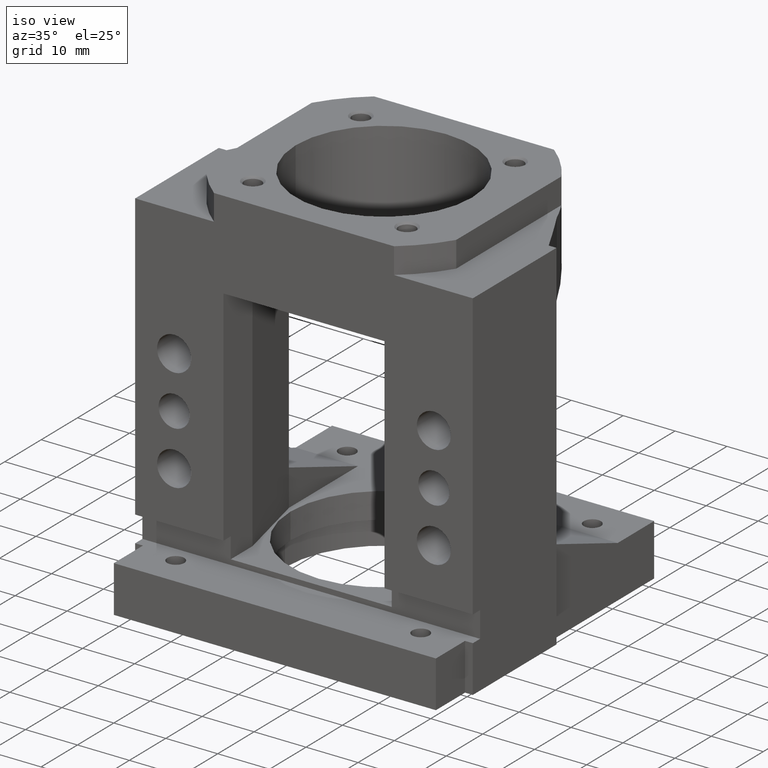
[diagram: clean part render]
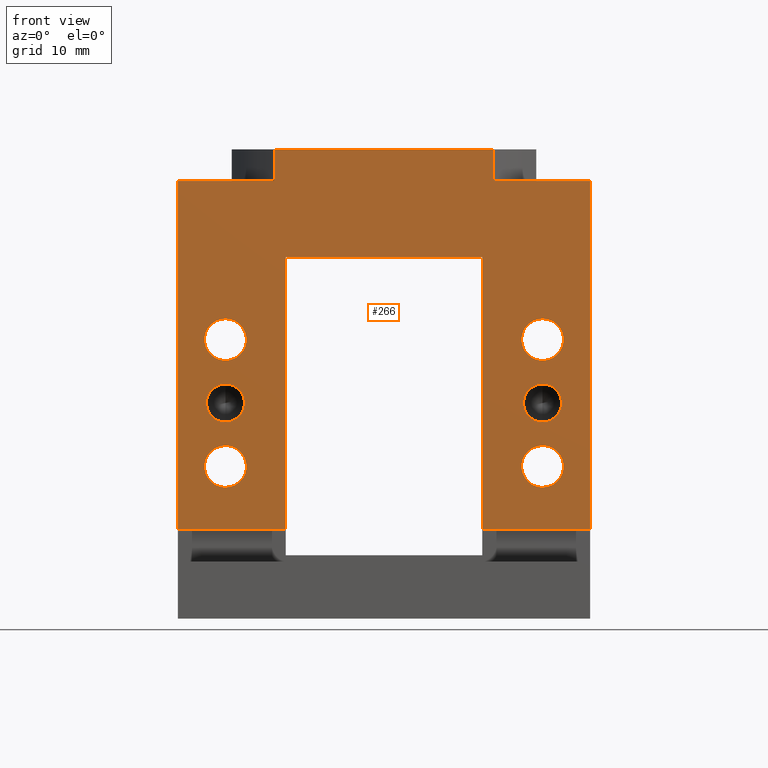
[diagram: tour spotlight — one face highlighted and labeled with its STEP entity id]
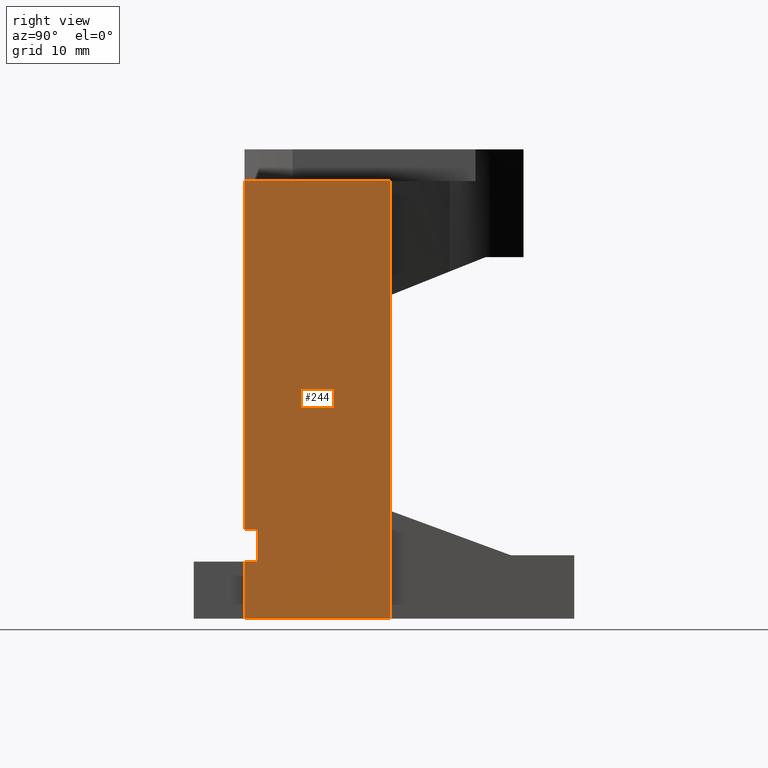
[diagram: tour spotlight — one face highlighted and labeled with its STEP entity id]
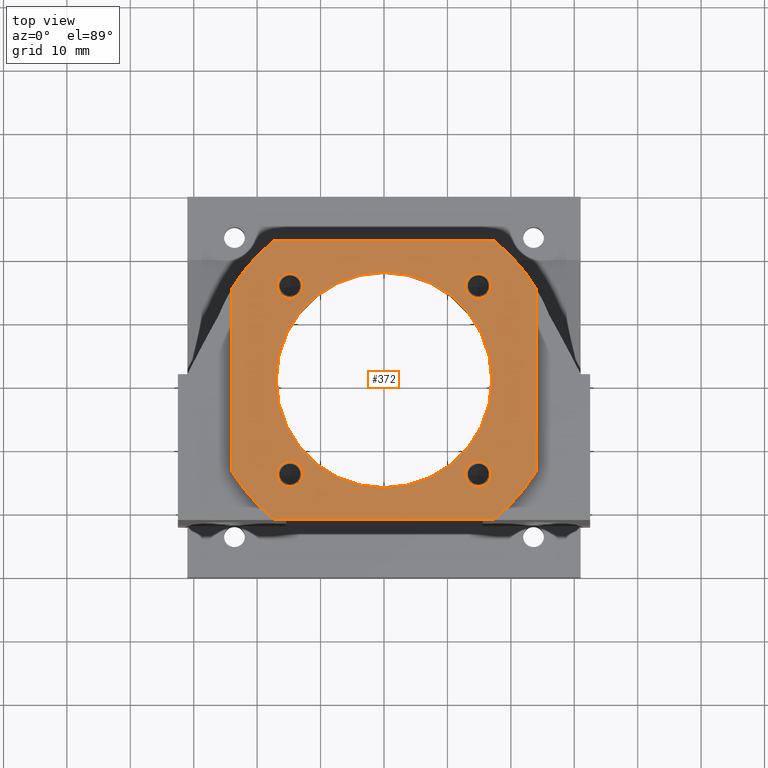
[diagram: tour spotlight — one face highlighted and labeled with its STEP entity id]
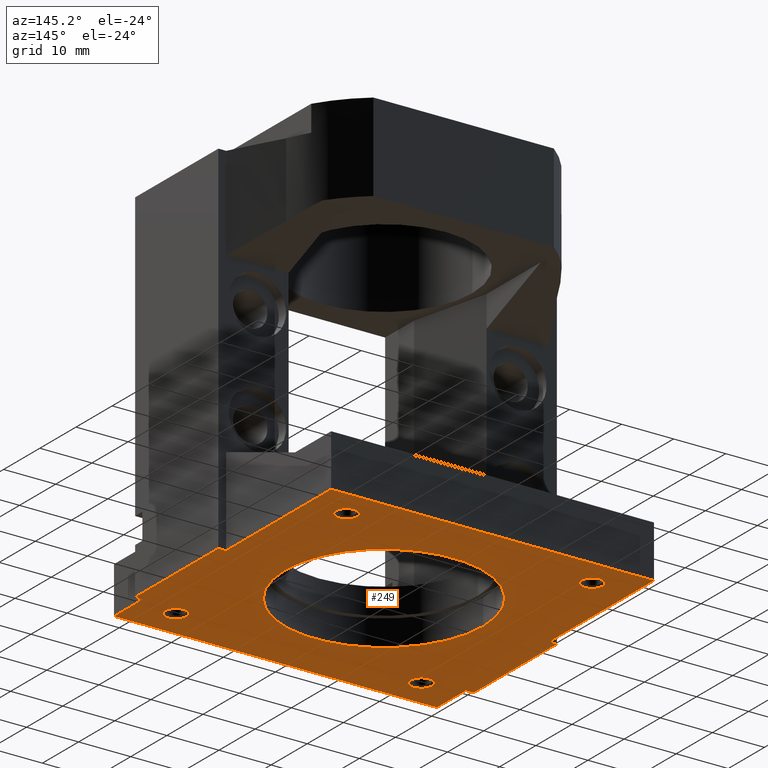
[diagram: tour spotlight — one face highlighted and labeled with its STEP entity id]
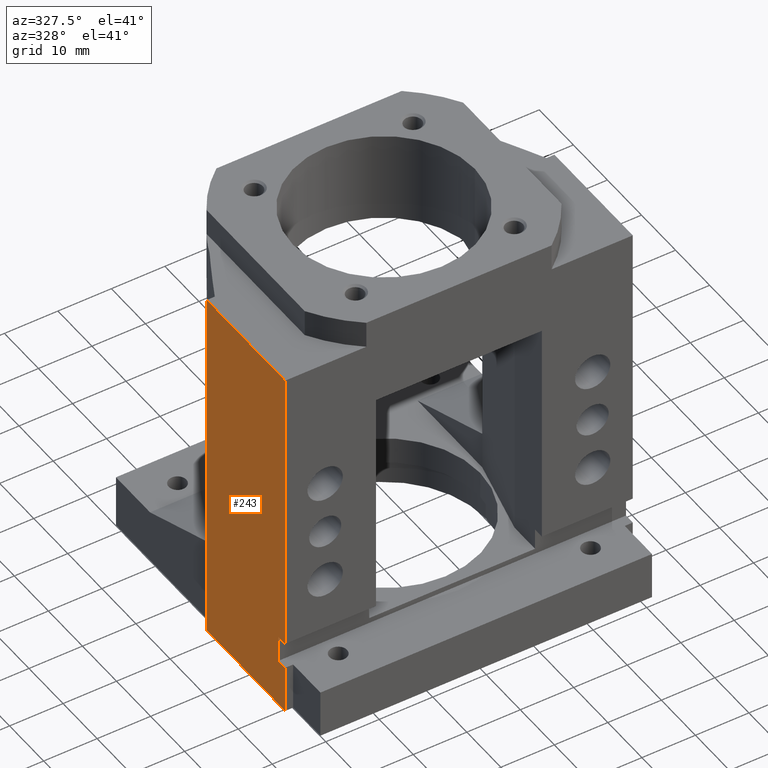
[diagram: tour spotlight — one face highlighted and labeled with its STEP entity id]
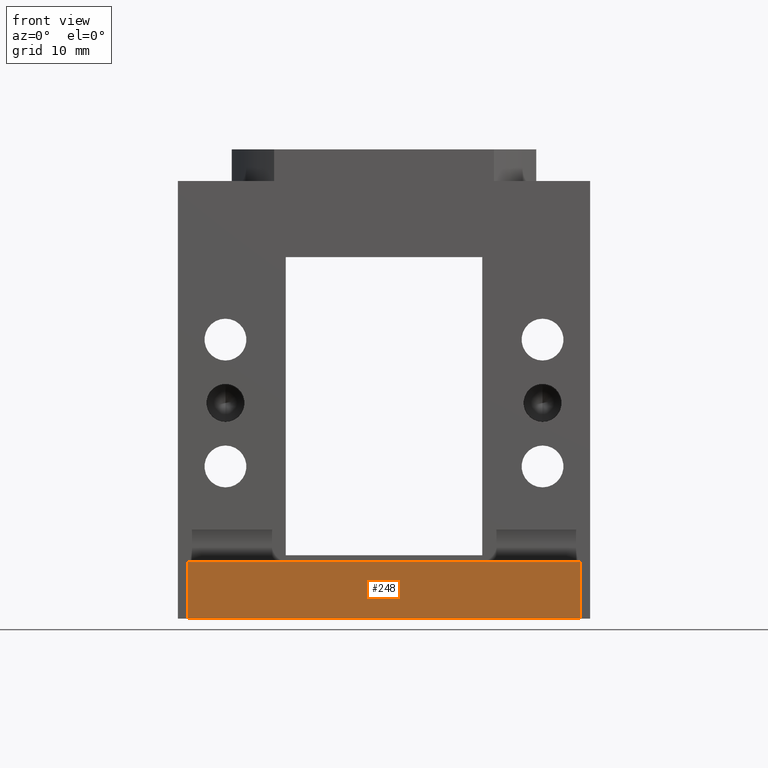
[diagram: tour spotlight — one face highlighted and labeled with its STEP entity id]
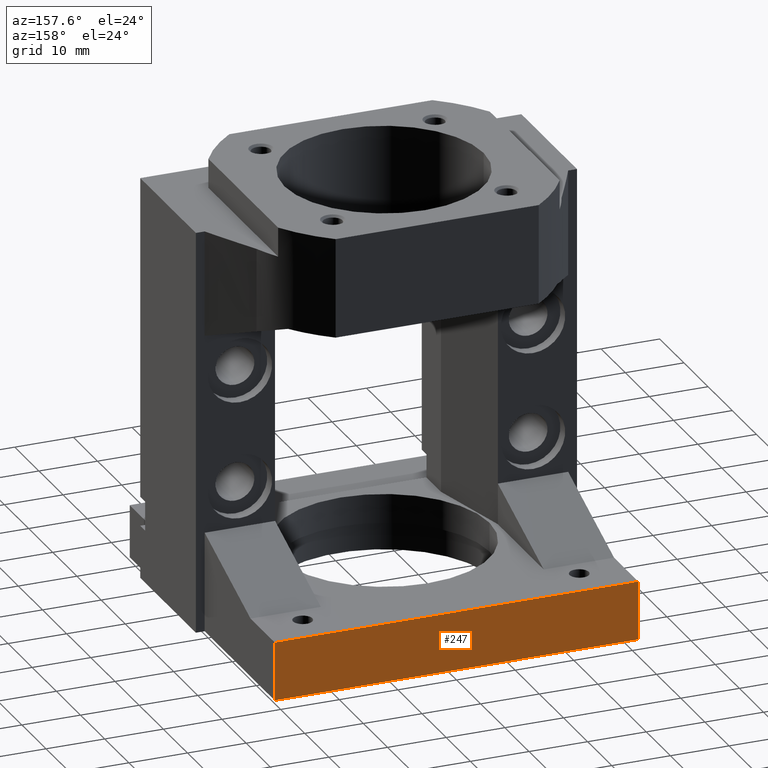
[diagram: tour spotlight — one face highlighted and labeled with its STEP entity id]
A machine part: a face-by-face anatomy tour. The part has 125 B-rep faces; the first image is the clean iso view, then the 7 largest visible faces are spotlighted one at a time (largest first), each with its STEP entity span.

Face 1 — front view, entity #266. In plain terms, the highlighted planar face has unit normal (-0, 1, 0).
Definition (entity closure, byte-faithful):
#1 = AXIS2_PLACEMENT_3D ( 'NONE', #1681, #1596, #2054 ) ;
#11 = CIRCLE ( 'NONE', #1, 3.000000000000002700 ) ;
#18 = CIRCLE ( 'NONE', #28, 3.000000000000002700 ) ;
#28 = AXIS2_PLACEMENT_3D ( 'NONE', #1690, #1825, #1732 ) ;
#50 = VECTOR ( 'NONE', #1881, 1000.000000000000000 ) ;
#59 = VECTOR ( 'NONE', #1739, 1000.000000000000000 ) ;
#70 = VECTOR ( 'NONE', #1718, 1000.000000000000000 ) ;
#101 = AXIS2_PLACEMENT_3D ( 'NONE', #1764, #1759, #1758 ) ;
#105 = EDGE_CURVE ( 'NONE', #691, #1298, #3123, .T. ) ;
#115 = EDGE_CURVE ( 'NONE', #729, #727, #3112, .T. ) ;
#121 = EDGE_CURVE ( 'NONE', #733, #770, #3163, .T. ) ;
#129 = EDGE_CURVE ( 'NONE', #734, #748, #3169, .T. ) ;
#138 = EDGE_CURVE ( 'NONE', #1294, #1296, #3109, .T. ) ;
#147 = EDGE_CURVE ( 'NONE', #829, #833, #3178, .T. ) ;
#154 = EDGE_CURVE ( 'NONE', #706, #829, #3181, .T. ) ;
#156 = EDGE_CURVE ( 'NONE', #833, #770, #3183, .T. ) ;
#173 = EDGE_CURVE ( 'NONE', #1296, #1294, #11, .T. ) ;
#177 = EDGE_CURVE ( 'NONE', #1298, #691, #18, .T. ) ;
#260 = EDGE_CURVE ( 'NONE', #712, #714, #3077, .T. ) ;
#266 = ADVANCED_FACE ( 'NONE', ( #3279, #3280, #3281, #3282, #3283, #3284, #3285 ), #1931, .F. ) ;
#288 = EDGE_CURVE ( 'NONE', #674, #835, #3589, .T. ) ;
#296 = EDGE_CURVE ( 'NONE', #694, #738, #1522, .T. ) ;
#373 = EDGE_CURVE ( 'NONE', #714, #712, #3696, .T. ) ;
#381 = EDGE_CURVE ( 'NONE', #835, #674, #3712, .T. ) ;
#388 = EDGE_CURVE ( 'NONE', #684, #683, #3402, .T. ) ;
#410 = EDGE_CURVE ( 'NONE', #738, #694, #3748, .T. ) ;
#422 = EDGE_CURVE ( 'NONE', #727, #729, #3770, .T. ) ;
#449 = EDGE_CURVE ( 'NONE', #748, #776, #3449, .T. ) ;
#450 = EDGE_CURVE ( 'NONE', #684, #706, #3451, .T. ) ;
#452 = EDGE_CURVE ( 'NONE', #733, #735, #3450, .T. ) ;
#456 = EDGE_CURVE ( 'NONE', #759, #735, #3457, .T. ) ;
#468 = EDGE_CURVE ( 'NONE', #734, #759, #3471, .T. ) ;
#469 = EDGE_CURVE ( 'NONE', #683, #776, #3472, .T. ) ;
#512 = VECTOR ( 'NONE', #2854, 1000.000000000000000 ) ;
#514 = VECTOR ( 'NONE', #2852, 1000.000000000000000 ) ;
#517 = VECTOR ( 'NONE', #2846, 1000.000000000000000 ) ;
#522 = VECTOR ( 'NONE', #2833, 1000.000000000000000 ) ;
#538 = VECTOR ( 'NONE', #2784, 1000.000000000000000 ) ;
#540 = VECTOR ( 'NONE', #2782, 1000.000000000000000 ) ;
#674 = VERTEX_POINT ( 'NONE', #2662 ) ;
#683 = VERTEX_POINT ( 'NONE', #2653 ) ;
#684 = VERTEX_POINT ( 'NONE', #2652 ) ;
#691 = VERTEX_POINT ( 'NONE', #2644 ) ;
#694 = VERTEX_POINT ( 'NONE', #2641 ) ;
#706 = VERTEX_POINT ( 'NONE', #2629 ) ;
#712 = VERTEX_POINT ( 'NONE', #2623 ) ;
#714 = VERTEX_POINT ( 'NONE', #2621 ) ;
#727 = VERTEX_POINT ( 'NONE', #2603 ) ;
#729 = VERTEX_POINT ( 'NONE', #2601 ) ;
#733 = VERTEX_POINT ( 'NONE', #2596 ) ;
#734 = VERTEX_POINT ( 'NONE', #2595 ) ;
#735 = VERTEX_POINT ( 'NONE', #2593 ) ;
#738 = VERTEX_POINT ( 'NONE', #2590 ) ;
#748 = VERTEX_POINT ( 'NONE', #2576 ) ;
#759 = VERTEX_POINT ( 'NONE', #2567 ) ;
#770 = VERTEX_POINT ( 'NONE', #2553 ) ;
#776 = VERTEX_POINT ( 'NONE', #2545 ) ;
#829 = VERTEX_POINT ( 'NONE', #2483 ) ;
#833 = VERTEX_POINT ( 'NONE', #2479 ) ;
#835 = VERTEX_POINT ( 'NONE', #2477 ) ;
#1294 = VERTEX_POINT ( 'NONE', #2454 ) ;
#1296 = VERTEX_POINT ( 'NONE', #2452 ) ;
#1298 = VERTEX_POINT ( 'NONE', #2449 ) ;
#1326 = ORIENTED_EDGE ( 'NONE', *, *, #105, .F. ) ;
#1327 = ORIENTED_EDGE ( 'NONE', *, *, #138, .F. ) ;
#1330 = ORIENTED_EDGE ( 'NONE', *, *, #422, .F. ) ;
#1331 = ORIENTED_EDGE ( 'NONE', *, *, #173, .F. ) ;
#1332 = ORIENTED_EDGE ( 'NONE', *, *, #388, .T. ) ;
#1333 = ORIENTED_EDGE ( 'NONE', *, *, #177, .F. ) ;
#1334 = ORIENTED_EDGE ( 'NONE', *, *, #115, .F. ) ;
#1335 = ORIENTED_EDGE ( 'NONE', *, *, #296, .F. ) ;
#1336 = ORIENTED_EDGE ( 'NONE', *, *, #410, .F. ) ;
#1337 = ORIENTED_EDGE ( 'NONE', *, *, #288, .F. ) ;
#1338 = ORIENTED_EDGE ( 'NONE', *, *, #260, .F. ) ;
#1339 = ORIENTED_EDGE ( 'NONE', *, *, #373, .F. ) ;
#1340 = ORIENTED_EDGE ( 'NONE', *, *, #381, .F. ) ;
#1342 = ORIENTED_EDGE ( 'NONE', *, *, #450, .F. ) ;
#1343 = ORIENTED_EDGE ( 'NONE', *, *, #469, .T. ) ;
#1344 = ORIENTED_EDGE ( 'NONE', *, *, #154, .F. ) ;
#1345 = ORIENTED_EDGE ( 'NONE', *, *, #449, .F. ) ;
#1346 = ORIENTED_EDGE ( 'NONE', *, *, #468, .T. ) ;
#1347 = ORIENTED_EDGE ( 'NONE', *, *, #129, .F. ) ;
#1348 = ORIENTED_EDGE ( 'NONE', *, *, #121, .T. ) ;
#1349 = ORIENTED_EDGE ( 'NONE', *, *, #456, .T. ) ;
#1350 = ORIENTED_EDGE ( 'NONE', *, *, #147, .F. ) ;
#1351 = ORIENTED_EDGE ( 'NONE', *, *, #156, .F. ) ;
#1352 = ORIENTED_EDGE ( 'NONE', *, *, #452, .F. ) ;
#1490 = EDGE_LOOP ( 'NONE', ( #1327, #1331 ) ) ;
#1491 = EDGE_LOOP ( 'NONE', ( #1326, #1333 ) ) ;
#1492 = EDGE_LOOP ( 'NONE', ( #1330, #1334 ) ) ;
#1493 = EDGE_LOOP ( 'NONE', ( #1336, #1335 ) ) ;
#1494 = EDGE_LOOP ( 'NONE', ( #1340, #1337 ) ) ;
#1495 = EDGE_LOOP ( 'NONE', ( #1339, #1338 ) ) ;
#1496 = EDGE_LOOP ( 'NONE', ( #1344, #1342, #1332, #1343, #1345, #1347, #1346, #1349, #1352, #1348, #1351, #1350 ) ) ;
#1503 = AXIS2_PLACEMENT_3D ( 'NONE', #1799, #1798, #1796 ) ;
#1522 = CIRCLE ( 'NONE', #101, 3.300000000000000700 ) ;
#1596 = DIRECTION ( 'NONE',  ( -0.0000000000000000000, -1.000000000000000000, -0.0000000000000000000 ) ) ;
#1614 = CARTESIAN_POINT ( 'NONE',  ( -17.32050807568875300, -22.00000000000002100, -25.34369172613753900 ) ) ;
#1625 = CARTESIAN_POINT ( 'NONE',  ( 17.32050807568876000, -22.00000000000001400, -25.34369172613753900 ) ) ;
#1627 = CARTESIAN_POINT ( 'NONE',  ( 25.99999999999999300, -22.00000000000001400, 69.00000000000000000 ) ) ;
#1653 = DIRECTION ( 'NONE',  ( -1.000000000000000000, -1.156482317317871500E-016, -0.0000000000000000000 ) ) ;
#1663 = DIRECTION ( 'NONE',  ( -1.000000000000000000, 0.0000000000000000000, 0.0000000000000000000 ) ) ;
#1680 = DIRECTION ( 'NONE',  ( -1.000000000000000000, -1.156482317317871500E-016, 0.0000000000000000000 ) ) ;
#1681 = CARTESIAN_POINT ( 'NONE',  ( -24.99999999999999600, -22.00000000000002100, 28.99999999999999600 ) ) ;
#1690 = CARTESIAN_POINT ( 'NONE',  ( 25.00000000000000400, -22.00000000000001800, 28.99999999999999600 ) ) ;
#1694 = DIRECTION ( 'NONE',  ( 0.0000000000000000000, 0.0000000000000000000, -1.000000000000000000 ) ) ;
#1700 = CARTESIAN_POINT ( 'NONE',  ( -25.00000000000000400, -22.00000000000002100, 39.00000000000000000 ) ) ;
#1717 = DIRECTION ( 'NONE',  ( -0.0000000000000000000, -1.000000000000000000, -0.0000000000000000000 ) ) ;
#1718 = DIRECTION ( 'NONE',  ( -0.0000000000000000000, -0.0000000000000000000, 1.000000000000000000 ) ) ;
#1732 = DIRECTION ( 'NONE',  ( 0.0000000000000000000, 0.0000000000000000000, -1.000000000000000000 ) ) ;
#1739 = DIRECTION ( 'NONE',  ( 1.000000000000000000, 1.156482317317871500E-016, 0.0000000000000000000 ) ) ;
#1749 = CARTESIAN_POINT ( 'NONE',  ( 25.00000000000000400, -22.00000000000001800, 28.99999999999999600 ) ) ;
#1750 = CARTESIAN_POINT ( 'NONE',  ( -24.99999999999999600, -22.00000000000002100, 28.99999999999999600 ) ) ;
#1758 = DIRECTION ( 'NONE',  ( -1.000000000000000000, 0.0000000000000000000, 0.0000000000000000000 ) ) ;
#1759 = DIRECTION ( 'NONE',  ( 1.156482317317871500E-016, -1.000000000000000000, -0.0000000000000000000 ) ) ;
#1761 = CARTESIAN_POINT ( 'NONE',  ( 32.49999999999999300, -22.00000000000001400, 64.00000000000000000 ) ) ;
#1764 = CARTESIAN_POINT ( 'NONE',  ( -24.99999999999999600, -22.00000000000002100, 19.00000000000000000 ) ) ;
#1796 = DIRECTION ( 'NONE',  ( -1.000000000000000000, 0.0000000000000000000, 0.0000000000000000000 ) ) ;
#1798 = DIRECTION ( 'NONE',  ( 1.156482317317871500E-016, -1.000000000000000000, -0.0000000000000000000 ) ) ;
#1799 = CARTESIAN_POINT ( 'NONE',  ( 25.00000000000000000, -22.00000000000001400, 39.00000000000000000 ) ) ;
#1823 = DIRECTION ( 'NONE',  ( 1.156482317317871500E-016, -1.000000000000000000, -0.0000000000000000000 ) ) ;
#1825 = DIRECTION ( 'NONE',  ( -0.0000000000000000000, -1.000000000000000000, -0.0000000000000000000 ) ) ;
#1881 = DIRECTION ( 'NONE',  ( 0.0000000000000000000, 0.0000000000000000000, -1.000000000000000000 ) ) ;
#1927 = DIRECTION ( 'NONE',  ( -1.000000000000000000, -1.156482317317871500E-016, 0.0000000000000000000 ) ) ;
#1928 = DIRECTION ( 'NONE',  ( -1.156482317317871500E-016, 1.000000000000000000, 0.0000000000000000000 ) ) ;
#1930 = CARTESIAN_POINT ( 'NONE',  ( 32.49999999999999300, -22.00000000000001400, 64.00000000000000000 ) ) ;
#1931 = PLANE ( 'NONE',  #2189 ) ;
#1959 = DIRECTION ( 'NONE',  ( -1.000000000000000000, 0.0000000000000000000, 0.0000000000000000000 ) ) ;
#1960 = DIRECTION ( 'NONE',  ( 1.156482317317871500E-016, -1.000000000000000000, -0.0000000000000000000 ) ) ;
#1961 = CARTESIAN_POINT ( 'NONE',  ( 25.00000000000000400, -22.00000000000001400, 19.00000000000000000 ) ) ;
#2000 = DIRECTION ( 'NONE',  ( 0.0000000000000000000, 0.0000000000000000000, -1.000000000000000000 ) ) ;
#2001 = DIRECTION ( 'NONE',  ( -0.0000000000000000000, -1.000000000000000000, -0.0000000000000000000 ) ) ;
#2031 = CARTESIAN_POINT ( 'NONE',  ( -31.00000000000000700, -22.00000000000002100, 52.00000000000000000 ) ) ;
#2054 = DIRECTION ( 'NONE',  ( 0.0000000000000000000, 0.0000000000000000000, -1.000000000000000000 ) ) ;
#2188 = AXIS2_PLACEMENT_3D ( 'NONE', #1961, #1960, #1959 ) ;
#2189 = AXIS2_PLACEMENT_3D ( 'NONE', #1930, #1928, #1927 ) ;
#2271 = DIRECTION ( 'NONE',  ( 0.0000000000000000000, 0.0000000000000000000, -1.000000000000000000 ) ) ;
#2272 = CARTESIAN_POINT ( 'NONE',  ( -32.49999999999999300, -22.00000000000001400, 64.00000000000000000 ) ) ;
#2321 = DIRECTION ( 'NONE',  ( -1.000000000000000000, 0.0000000000000000000, 0.0000000000000000000 ) ) ;
#2324 = DIRECTION ( 'NONE',  ( 1.156482317317871500E-016, -1.000000000000000000, -0.0000000000000000000 ) ) ;
#2327 = CARTESIAN_POINT ( 'NONE',  ( 25.00000000000000000, -22.00000000000001400, 39.00000000000000000 ) ) ;
#2422 = DIRECTION ( 'NONE',  ( -1.000000000000000000, 0.0000000000000000000, 0.0000000000000000000 ) ) ;
#2426 = DIRECTION ( 'NONE',  ( 1.156482317317871500E-016, -1.000000000000000000, -0.0000000000000000000 ) ) ;
#2429 = CARTESIAN_POINT ( 'NONE',  ( 25.00000000000000400, -22.00000000000001400, 19.00000000000000000 ) ) ;
#2449 = CARTESIAN_POINT ( 'NONE',  ( 25.00000000000000400, -22.00000000000001800, 32.00000000000000000 ) ) ;
#2452 = CARTESIAN_POINT ( 'NONE',  ( -24.99999999999999600, -22.00000000000002100, 32.00000000000000000 ) ) ;
#2454 = CARTESIAN_POINT ( 'NONE',  ( -24.99999999999999600, -22.00000000000002100, 25.99999999999999600 ) ) ;
#2477 = CARTESIAN_POINT ( 'NONE',  ( 25.00000000000000000, -22.00000000000001400, 42.29999999999999700 ) ) ;
#2479 = CARTESIAN_POINT ( 'NONE',  ( 17.32050807568876000, -22.00000000000001400, 69.00000000000000000 ) ) ;
#2483 = CARTESIAN_POINT ( 'NONE',  ( -17.32050807568875300, -22.00000000000002100, 69.00000000000000000 ) ) ;
#2545 = CARTESIAN_POINT ( 'NONE',  ( -15.50000000000000700, -22.00000000000002100, 9.000000000000000000 ) ) ;
#2553 = CARTESIAN_POINT ( 'NONE',  ( 17.32050807568876000, -22.00000000000001400, 64.00000000000000000 ) ) ;
#2567 = CARTESIAN_POINT ( 'NONE',  ( 15.50000000000000700, -22.00000000000001800, 9.000000000000000000 ) ) ;
#2576 = CARTESIAN_POINT ( 'NONE',  ( -15.50000000000000700, -22.00000000000001800, 52.00000000000000000 ) ) ;
#2590 = CARTESIAN_POINT ( 'NONE',  ( -24.99999999999999600, -22.00000000000002100, 22.30000000000000100 ) ) ;
#2593 = CARTESIAN_POINT ( 'NONE',  ( 32.49999999999999300, -22.00000000000001800, 9.000000000000000000 ) ) ;
#2595 = CARTESIAN_POINT ( 'NONE',  ( 15.50000000000000700, -22.00000000000001400, 52.00000000000000000 ) ) ;
#2596 = CARTESIAN_POINT ( 'NONE',  ( 32.49999999999999300, -22.00000000000001400, 64.00000000000000000 ) ) ;
#2601 = CARTESIAN_POINT ( 'NONE',  ( -25.00000000000000400, -22.00000000000002100, 35.70000000000000300 ) ) ;
#2603 = CARTESIAN_POINT ( 'NONE',  ( -25.00000000000000400, -22.00000000000002100, 42.29999999999999700 ) ) ;
#2621 = CARTESIAN_POINT ( 'NONE',  ( 25.00000000000000400, -22.00000000000001400, 22.30000000000000100 ) ) ;
#2623 = CARTESIAN_POINT ( 'NONE',  ( 25.00000000000000400, -22.00000000000001400, 15.69999999999999900 ) ) ;
#2629 = CARTESIAN_POINT ( 'NONE',  ( -17.32050807568875300, -22.00000000000002100, 64.00000000000000000 ) ) ;
#2641 = CARTESIAN_POINT ( 'NONE',  ( -24.99999999999999600, -22.00000000000002100, 15.69999999999999900 ) ) ;
#2644 = CARTESIAN_POINT ( 'NONE',  ( 25.00000000000000400, -22.00000000000001800, 25.99999999999999600 ) ) ;
#2652 = CARTESIAN_POINT ( 'NONE',  ( -32.49999999999999300, -22.00000000000001400, 64.00000000000000000 ) ) ;
#2653 = CARTESIAN_POINT ( 'NONE',  ( -32.49999999999999300, -22.00000000000002100, 9.000000000000000000 ) ) ;
#2662 = CARTESIAN_POINT ( 'NONE',  ( 25.00000000000000000, -22.00000000000001400, 35.70000000000000300 ) ) ;
#2782 = DIRECTION ( 'NONE',  ( 1.000000000000000000, 1.156482317317871200E-016, -0.0000000000000000000 ) ) ;
#2783 = CARTESIAN_POINT ( 'NONE',  ( -32.50002499999999400, -22.00000000000002100, 9.000000000000000000 ) ) ;
#2784 = DIRECTION ( 'NONE',  ( 0.0000000000000000000, 0.0000000000000000000, -1.000000000000000000 ) ) ;
#2786 = CARTESIAN_POINT ( 'NONE',  ( 15.50000000000000700, -22.00000000000001400, 59.00000000000000000 ) ) ;
#2833 = DIRECTION ( 'NONE',  ( 1.000000000000000000, 1.156482317317871200E-016, -0.0000000000000000000 ) ) ;
#2835 = CARTESIAN_POINT ( 'NONE',  ( -32.50002499999999400, -22.00000000000002100, 9.000000000000000000 ) ) ;
#2846 = DIRECTION ( 'NONE',  ( 0.0000000000000000000, 0.0000000000000000000, -1.000000000000000000 ) ) ;
#2847 = CARTESIAN_POINT ( 'NONE',  ( 32.49999999999999300, -22.00000000000001400, 64.00000000000000000 ) ) ;
#2852 = DIRECTION ( 'NONE',  ( 1.000000000000000000, -1.156482317317871500E-016, -0.0000000000000000000 ) ) ;
#2853 = CARTESIAN_POINT ( 'NONE',  ( -32.49999999999999300, -22.00000000000001400, 64.00000000000000000 ) ) ;
#2854 = DIRECTION ( 'NONE',  ( 0.0000000000000000000, 0.0000000000000000000, -1.000000000000000000 ) ) ;
#2855 = CARTESIAN_POINT ( 'NONE',  ( -15.50000000000000700, -22.00000000000002100, 59.00000000000000000 ) ) ;
#2951 = DIRECTION ( 'NONE',  ( -1.000000000000000000, 0.0000000000000000000, 0.0000000000000000000 ) ) ;
#2952 = DIRECTION ( 'NONE',  ( 1.156482317317871500E-016, -1.000000000000000000, -0.0000000000000000000 ) ) ;
#2953 = CARTESIAN_POINT ( 'NONE',  ( -25.00000000000000400, -22.00000000000002100, 39.00000000000000000 ) ) ;
#2991 = DIRECTION ( 'NONE',  ( -1.000000000000000000, 0.0000000000000000000, 0.0000000000000000000 ) ) ;
#2992 = DIRECTION ( 'NONE',  ( 1.156482317317871500E-016, -1.000000000000000000, -0.0000000000000000000 ) ) ;
#2993 = CARTESIAN_POINT ( 'NONE',  ( -24.99999999999999600, -22.00000000000002100, 19.00000000000000000 ) ) ;
#3077 = CIRCLE ( 'NONE', #2188, 3.300000000000000700 ) ;
#3092 = AXIS2_PLACEMENT_3D ( 'NONE', #1700, #1823, #1663 ) ;
#3103 = VECTOR ( 'NONE', #1680, 1000.000000000000000 ) ;
#3108 = AXIS2_PLACEMENT_3D ( 'NONE', #1750, #2001, #2000 ) ;
#3109 = CIRCLE ( 'NONE', #3108, 3.000000000000002700 ) ;
#3112 = CIRCLE ( 'NONE', #3092, 3.300000000000000700 ) ;
#3123 = CIRCLE ( 'NONE', #3128, 3.000000000000002700 ) ;
#3125 = VECTOR ( 'NONE', #1653, 1000.000000000000000 ) ;
#3128 = AXIS2_PLACEMENT_3D ( 'NONE', #1749, #1717, #1694 ) ;
#3163 = LINE ( 'NONE', #1761, #3125 ) ;
#3169 = LINE ( 'NONE', #2031, #3103 ) ;
#3178 = LINE ( 'NONE', #1627, #59 ) ;
#3181 = LINE ( 'NONE', #1614, #70 ) ;
#3183 = LINE ( 'NONE', #1625, #50 ) ;
#3279 = FACE_BOUND ( 'NONE', #1490, .T. ) ;
#3280 = FACE_BOUND ( 'NONE', #1491, .T. ) ;
#3281 = FACE_BOUND ( 'NONE', #1492, .T. ) ;
#3282 = FACE_BOUND ( 'NONE', #1493, .T. ) ;
#3283 = FACE_BOUND ( 'NONE', #1494, .T. ) ;
#3284 = FACE_BOUND ( 'NONE', #1495, .T. ) ;
#3285 = FACE_OUTER_BOUND ( 'NONE', #1496, .T. ) ;
#3402 = LINE ( 'NONE', #2272, #3722 ) ;
#3449 = LINE ( 'NONE', #2855, #512 ) ;
#3450 = LINE ( 'NONE', #2847, #517 ) ;
#3451 = LINE ( 'NONE', #2853, #514 ) ;
#3457 = LINE ( 'NONE', #2835, #522 ) ;
#3471 = LINE ( 'NONE', #2786, #538 ) ;
#3472 = LINE ( 'NONE', #2783, #540 ) ;
#3589 = CIRCLE ( 'NONE', #1503, 3.299999999999997200 ) ;
#3696 = CIRCLE ( 'NONE', #3700, 3.300000000000000700 ) ;
#3700 = AXIS2_PLACEMENT_3D ( 'NONE', #2429, #2426, #2422 ) ;
#3712 = CIRCLE ( 'NONE', #3713, 3.299999999999997200 ) ;
#3713 = AXIS2_PLACEMENT_3D ( 'NONE', #2327, #2324, #2321 ) ;
#3722 = VECTOR ( 'NONE', #2271, 1000.000000000000000 ) ;
#3748 = CIRCLE ( 'NONE', #3754, 3.300000000000000700 ) ;
#3754 = AXIS2_PLACEMENT_3D ( 'NONE', #2993, #2992, #2991 ) ;
#3770 = CIRCLE ( 'NONE', #3772, 3.300000000000000700 ) ;
#3772 = AXIS2_PLACEMENT_3D ( 'NONE', #2953, #2952, #2951 ) ;

Face 2 — right view, entity #244. In plain terms, the highlighted planar face has unit normal (1, 0, 0).
Definition (entity closure, byte-faithful):
#122 = EDGE_CURVE ( 'NONE', #743, #733, #3164, .T. ) ;
#232 = EDGE_CURVE ( 'NONE', #828, #697, #3231, .T. ) ;
#233 = EDGE_CURVE ( 'NONE', #697, #735, #3232, .T. ) ;
#234 = EDGE_CURVE ( 'NONE', #716, #828, #3233, .T. ) ;
#244 = ADVANCED_FACE ( 'NONE', ( #3243 ), #2072, .T. ) ;
#308 = EDGE_CURVE ( 'NONE', #716, #686, #3320, .T. ) ;
#452 = EDGE_CURVE ( 'NONE', #733, #735, #3450, .T. ) ;
#517 = VECTOR ( 'NONE', #2846, 1000.000000000000000 ) ;
#582 = VECTOR ( 'NONE', #2419, 1000.000000000000000 ) ;
#604 = VECTOR ( 'NONE', #2358, 1000.000000000000000 ) ;
#686 = VERTEX_POINT ( 'NONE', #2649 ) ;
#697 = VERTEX_POINT ( 'NONE', #2638 ) ;
#716 = VERTEX_POINT ( 'NONE', #2619 ) ;
#719 = VERTEX_POINT ( 'NONE', #2616 ) ;
#733 = VERTEX_POINT ( 'NONE', #2596 ) ;
#735 = VERTEX_POINT ( 'NONE', #2593 ) ;
#743 = VERTEX_POINT ( 'NONE', #2581 ) ;
#828 = VERTEX_POINT ( 'NONE', #2484 ) ;
#1094 = ORIENTED_EDGE ( 'NONE', *, *, #452, .T. ) ;
#1095 = ORIENTED_EDGE ( 'NONE', *, *, #122, .T. ) ;
#1096 = ORIENTED_EDGE ( 'NONE', *, *, #3802, .T. ) ;
#1097 = ORIENTED_EDGE ( 'NONE', *, *, #3820, .T. ) ;
#1098 = ORIENTED_EDGE ( 'NONE', *, *, #308, .T. ) ;
#1099 = ORIENTED_EDGE ( 'NONE', *, *, #232, .F. ) ;
#1100 = ORIENTED_EDGE ( 'NONE', *, *, #234, .F. ) ;
#1101 = ORIENTED_EDGE ( 'NONE', *, *, #233, .F. ) ;
#1532 = AXIS2_PLACEMENT_3D ( 'NONE', #2071, #2069, #2068 ) ;
#1552 = DIRECTION ( 'NONE',  ( -0.0000000000000000000, 1.000000000000000000, -0.0000000000000000000 ) ) ;
#1553 = CARTESIAN_POINT ( 'NONE',  ( 32.49999999999999300, -20.00000000000001100, 3.999999999999999100 ) ) ;
#1555 = DIRECTION ( 'NONE',  ( 0.0000000000000000000, -1.000000000000000000, -8.673617379884027600E-016 ) ) ;
#1556 = CARTESIAN_POINT ( 'NONE',  ( 32.49999999999999300, -20.00000000000001400, 9.000000000000001800 ) ) ;
#1569 = DIRECTION ( 'NONE',  ( -0.0000000000000000000, -6.938893903907227400E-016, 1.000000000000000000 ) ) ;
#1574 = CARTESIAN_POINT ( 'NONE',  ( 32.49999999999999300, -20.00000000000001400, 9.000000000000001800 ) ) ;
#1621 = DIRECTION ( 'NONE',  ( 1.508455196501570900E-016, -1.000000000000000000, 0.0000000000000000000 ) ) ;
#1636 = DIRECTION ( 'NONE',  ( 0.0000000000000000000, 0.0000000000000000000, -1.000000000000000000 ) ) ;
#1637 = CARTESIAN_POINT ( 'NONE',  ( 32.49999999999999300, -22.00000000000001400, 64.00000000000000000 ) ) ;
#1887 = CARTESIAN_POINT ( 'NONE',  ( 32.49999999999999300, 0.9999999999999943400, 64.00000000000000000 ) ) ;
#2068 = DIRECTION ( 'NONE',  ( -1.508455196501570900E-016, 1.000000000000000000, 0.0000000000000000000 ) ) ;
#2069 = DIRECTION ( 'NONE',  ( 1.000000000000000000, 1.508455196501570900E-016, 0.0000000000000000000 ) ) ;
#2071 = CARTESIAN_POINT ( 'NONE',  ( 32.49999999999999300, -22.00000000000001400, 64.00000000000000000 ) ) ;
#2072 = PLANE ( 'NONE',  #1532 ) ;
#2143 = EDGE_LOOP ( 'NONE', ( #1101, #1099, #1100, #1098, #1096, #1097, #1095, #1094 ) ) ;
#2358 = DIRECTION ( 'NONE',  ( -0.0000000000000000000, 3.142614992711606800E-018, 1.000000000000000000 ) ) ;
#2359 = CARTESIAN_POINT ( 'NONE',  ( 32.49999999999999300, 0.9999999999999943400, 64.00000000000000000 ) ) ;
#2419 = DIRECTION ( 'NONE',  ( -1.508455196501570900E-016, 1.000000000000000000, -0.0000000000000000000 ) ) ;
#2420 = CARTESIAN_POINT ( 'NONE',  ( 32.49999999999999300, 0.9999999999999941200, -5.000000000000000000 ) ) ;
#2484 = CARTESIAN_POINT ( 'NONE',  ( 32.49999999999999300, -20.00000000000001100, 3.999999999999999100 ) ) ;
#2581 = CARTESIAN_POINT ( 'NONE',  ( 32.49999999999999300, 0.9999999999999943400, 64.00000000000000000 ) ) ;
#2593 = CARTESIAN_POINT ( 'NONE',  ( 32.49999999999999300, -22.00000000000001800, 9.000000000000000000 ) ) ;
#2596 = CARTESIAN_POINT ( 'NONE',  ( 32.49999999999999300, -22.00000000000001400, 64.00000000000000000 ) ) ;
#2616 = CARTESIAN_POINT ( 'NONE',  ( 32.49999999999999300, 0.9999999999999941200, -5.000000000000000000 ) ) ;
#2619 = CARTESIAN_POINT ( 'NONE',  ( 32.49999999999999300, -22.00000000000001400, 3.999999999999999100 ) ) ;
#2638 = CARTESIAN_POINT ( 'NONE',  ( 32.49999999999999300, -20.00000000000001400, 9.000000000000001800 ) ) ;
#2649 = CARTESIAN_POINT ( 'NONE',  ( 32.49999999999999300, -22.00000000000001400, -5.000000000000000000 ) ) ;
#2846 = DIRECTION ( 'NONE',  ( 0.0000000000000000000, 0.0000000000000000000, -1.000000000000000000 ) ) ;
#2847 = CARTESIAN_POINT ( 'NONE',  ( 32.49999999999999300, -22.00000000000001400, 64.00000000000000000 ) ) ;
#3121 = VECTOR ( 'NONE', #1621, 1000.000000000000000 ) ;
#3164 = LINE ( 'NONE', #1887, #3121 ) ;
#3231 = LINE ( 'NONE', #1574, #3603 ) ;
#3232 = LINE ( 'NONE', #1556, #3602 ) ;
#3233 = LINE ( 'NONE', #1553, #3605 ) ;
#3243 = FACE_OUTER_BOUND ( 'NONE', #2143, .T. ) ;
#3320 = LINE ( 'NONE', #1637, #3619 ) ;
#3450 = LINE ( 'NONE', #2847, #517 ) ;
#3508 = LINE ( 'NONE', #2420, #582 ) ;
#3523 = LINE ( 'NONE', #2359, #604 ) ;
#3602 = VECTOR ( 'NONE', #1555, 1000.000000000000000 ) ;
#3603 = VECTOR ( 'NONE', #1569, 1000.000000000000000 ) ;
#3605 = VECTOR ( 'NONE', #1552, 1000.000000000000000 ) ;
#3619 = VECTOR ( 'NONE', #1636, 1000.000000000000000 ) ;
#3802 = EDGE_CURVE ( 'NONE', #686, #719, #3508, .T. ) ;
#3820 = EDGE_CURVE ( 'NONE', #719, #743, #3523, .T. ) ;

Face 3 — top view, entity #372. In plain terms, the highlighted planar face has unit normal (0, 0, -1).
Definition (entity closure, byte-faithful):
#23 = CIRCLE ( 'NONE', #33, 28.00000000000000000 ) ;
#25 = AXIS2_PLACEMENT_3D ( 'NONE', #1558, #1826, #2052 ) ;
#26 = VECTOR ( 'NONE', #1619, 1000.000000000000000 ) ;
#33 = AXIS2_PLACEMENT_3D ( 'NONE', #1729, #1538, #1818 ) ;
#34 = AXIS2_PLACEMENT_3D ( 'NONE', #1688, #1870, #1722 ) ;
#38 = AXIS2_PLACEMENT_3D ( 'NONE', #1988, #1685, #1728 ) ;
#40 = CIRCLE ( 'NONE', #25, 28.00000000000000000 ) ;
#42 = AXIS2_PLACEMENT_3D ( 'NONE', #1693, #1824, #1554 ) ;
#43 = CIRCLE ( 'NONE', #65, 28.00000000000000000 ) ;
#49 = CIRCLE ( 'NONE', #34, 28.00000000000000000 ) ;
#52 = CIRCLE ( 'NONE', #42, 2.024999999999999000 ) ;
#57 = VECTOR ( 'NONE', #1563, 1000.000000000000000 ) ;
#59 = VECTOR ( 'NONE', #1739, 1000.000000000000000 ) ;
#65 = AXIS2_PLACEMENT_3D ( 'NONE', #2103, #2009, #1724 ) ;
#66 = AXIS2_PLACEMENT_3D ( 'NONE', #1705, #1687, #1602 ) ;
#69 = CIRCLE ( 'NONE', #38, 2.024999999999999000 ) ;
#71 = CIRCLE ( 'NONE', #66, 2.024999999999999000 ) ;
#73 = AXIS2_PLACEMENT_3D ( 'NONE', #1762, #1675, #1546 ) ;
#74 = CIRCLE ( 'NONE', #73, 17.00000000000000000 ) ;
#79 = AXIS2_PLACEMENT_3D ( 'NONE', #1792, #1786, #1783 ) ;
#84 = CIRCLE ( 'NONE', #89, 2.024999999999999000 ) ;
#89 = AXIS2_PLACEMENT_3D ( 'NONE', #1691, #1677, #1668 ) ;
#113 = EDGE_CURVE ( 'NONE', #705, #837, #3159, .T. ) ;
#140 = EDGE_CURVE ( 'NONE', #792, #799, #3114, .T. ) ;
#141 = EDGE_CURVE ( 'NONE', #689, #812, #3097, .T. ) ;
#142 = EDGE_CURVE ( 'NONE', #845, #839, #52, .T. ) ;
#143 = EDGE_CURVE ( 'NONE', #783, #675, #71, .T. ) ;
#144 = EDGE_CURVE ( 'NONE', #740, #825, #74, .T. ) ;
#145 = EDGE_CURVE ( 'NONE', #829, #663, #49, .T. ) ;
#146 = EDGE_CURVE ( 'NONE', #764, #663, #3177, .T. ) ;
#147 = EDGE_CURVE ( 'NONE', #829, #833, #3178, .T. ) ;
#148 = EDGE_CURVE ( 'NONE', #742, #833, #43, .T. ) ;
#149 = EDGE_CURVE ( 'NONE', #742, #687, #3179, .T. ) ;
#150 = EDGE_CURVE ( 'NONE', #687, #837, #23, .T. ) ;
#151 = EDGE_CURVE ( 'NONE', #764, #705, #40, .T. ) ;
#157 = EDGE_CURVE ( 'NONE', #839, #845, #69, .T. ) ;
#214 = EDGE_CURVE ( 'NONE', #799, #792, #3055, .T. ) ;
#220 = EDGE_CURVE ( 'NONE', #812, #689, #84, .T. ) ;
#372 = ADVANCED_FACE ( 'NONE', ( #3387, #3388, #3389, #3390, #3391, #3392 ), #2437, .F. ) ;
#389 = EDGE_CURVE ( 'NONE', #825, #740, #3709, .T. ) ;
#398 = EDGE_CURVE ( 'NONE', #675, #783, #3732, .T. ) ;
#663 = VERTEX_POINT ( 'NONE', #2675 ) ;
#675 = VERTEX_POINT ( 'NONE', #2661 ) ;
#687 = VERTEX_POINT ( 'NONE', #2648 ) ;
#689 = VERTEX_POINT ( 'NONE', #2646 ) ;
#705 = VERTEX_POINT ( 'NONE', #2630 ) ;
#740 = VERTEX_POINT ( 'NONE', #2586 ) ;
#742 = VERTEX_POINT ( 'NONE', #2584 ) ;
#764 = VERTEX_POINT ( 'NONE', #2563 ) ;
#783 = VERTEX_POINT ( 'NONE', #2537 ) ;
#792 = VERTEX_POINT ( 'NONE', #2527 ) ;
#799 = VERTEX_POINT ( 'NONE', #2519 ) ;
#812 = VERTEX_POINT ( 'NONE', #2504 ) ;
#825 = VERTEX_POINT ( 'NONE', #2487 ) ;
#829 = VERTEX_POINT ( 'NONE', #2483 ) ;
#833 = VERTEX_POINT ( 'NONE', #2479 ) ;
#837 = VERTEX_POINT ( 'NONE', #2475 ) ;
#839 = VERTEX_POINT ( 'NONE', #2471 ) ;
#845 = VERTEX_POINT ( 'NONE', #2464 ) ;
#1218 = ORIENTED_EDGE ( 'NONE', *, *, #151, .F. ) ;
#1219 = ORIENTED_EDGE ( 'NONE', *, *, #113, .F. ) ;
#1220 = ORIENTED_EDGE ( 'NONE', *, *, #150, .T. ) ;
#1221 = ORIENTED_EDGE ( 'NONE', *, *, #149, .T. ) ;
#1222 = ORIENTED_EDGE ( 'NONE', *, *, #148, .F. ) ;
#1223 = ORIENTED_EDGE ( 'NONE', *, *, #145, .F. ) ;
#1224 = ORIENTED_EDGE ( 'NONE', *, *, #147, .T. ) ;
#1225 = ORIENTED_EDGE ( 'NONE', *, *, #389, .F. ) ;
#1226 = ORIENTED_EDGE ( 'NONE', *, *, #398, .F. ) ;
#1227 = ORIENTED_EDGE ( 'NONE', *, *, #146, .T. ) ;
#1228 = ORIENTED_EDGE ( 'NONE', *, *, #157, .F. ) ;
#1229 = ORIENTED_EDGE ( 'NONE', *, *, #144, .F. ) ;
#1230 = ORIENTED_EDGE ( 'NONE', *, *, #220, .F. ) ;
#1231 = ORIENTED_EDGE ( 'NONE', *, *, #143, .F. ) ;
#1232 = ORIENTED_EDGE ( 'NONE', *, *, #214, .F. ) ;
#1480 = EDGE_LOOP ( 'NONE', ( #3130, #1232 ) ) ;
#1481 = EDGE_LOOP ( 'NONE', ( #3131, #1230 ) ) ;
#1482 = EDGE_LOOP ( 'NONE', ( #3129, #1228 ) ) ;
#1483 = EDGE_LOOP ( 'NONE', ( #1231, #1226 ) ) ;
#1484 = EDGE_LOOP ( 'NONE', ( #1229, #1225 ) ) ;
#1485 = EDGE_LOOP ( 'NONE', ( #1227, #1223, #1224, #1222, #1221, #1220, #1219, #1218 ) ) ;
#1538 = DIRECTION ( 'NONE',  ( 0.0000000000000000000, 0.0000000000000000000, 1.000000000000000000 ) ) ;
#1543 = DIRECTION ( 'NONE',  ( 1.000000000000000000, 0.0000000000000000000, 0.0000000000000000000 ) ) ;
#1546 = DIRECTION ( 'NONE',  ( 1.000000000000000000, 0.0000000000000000000, 0.0000000000000000000 ) ) ;
#1554 = DIRECTION ( 'NONE',  ( 1.000000000000000000, 0.0000000000000000000, 0.0000000000000000000 ) ) ;
#1558 = CARTESIAN_POINT ( 'NONE',  ( 0.0000000000000000000, 0.0000000000000000000, 69.00000000000000000 ) ) ;
#1563 = DIRECTION ( 'NONE',  ( -6.846821127225644900E-017, 1.000000000000000000, -0.0000000000000000000 ) ) ;
#1602 = DIRECTION ( 'NONE',  ( 1.000000000000000000, 0.0000000000000000000, 0.0000000000000000000 ) ) ;
#1605 = CARTESIAN_POINT ( 'NONE',  ( 26.00000000000000000, 22.00000000000000000, 69.00000000000000000 ) ) ;
#1619 = DIRECTION ( 'NONE',  ( 1.369364225445129000E-016, -1.000000000000000000, 0.0000000000000000000 ) ) ;
#1627 = CARTESIAN_POINT ( 'NONE',  ( 25.99999999999999300, -22.00000000000001400, 69.00000000000000000 ) ) ;
#1668 = DIRECTION ( 'NONE',  ( 1.000000000000000000, 0.0000000000000000000, 0.0000000000000000000 ) ) ;
#1674 = DIRECTION ( 'NONE',  ( 1.000000000000000000, 0.0000000000000000000, 0.0000000000000000000 ) ) ;
#1675 = DIRECTION ( 'NONE',  ( 0.0000000000000000000, 0.0000000000000000000, 1.000000000000000000 ) ) ;
#1677 = DIRECTION ( 'NONE',  ( -0.0000000000000000000, -0.0000000000000000000, 1.000000000000000000 ) ) ;
#1682 = DIRECTION ( 'NONE',  ( -0.0000000000000000000, -0.0000000000000000000, 1.000000000000000000 ) ) ;
#1685 = DIRECTION ( 'NONE',  ( -0.0000000000000000000, -0.0000000000000000000, 1.000000000000000000 ) ) ;
#1687 = DIRECTION ( 'NONE',  ( -0.0000000000000000000, -0.0000000000000000000, 1.000000000000000000 ) ) ;
#1688 = CARTESIAN_POINT ( 'NONE',  ( 0.0000000000000000000, 0.0000000000000000000, 69.00000000000000000 ) ) ;
#1691 = CARTESIAN_POINT ( 'NONE',  ( -14.84924240491736600, -14.84924240491762900, 69.00000000000000000 ) ) ;
#1693 = CARTESIAN_POINT ( 'NONE',  ( -14.84924240491757700, 14.84924240491741700, 69.00000000000000000 ) ) ;
#1705 = CARTESIAN_POINT ( 'NONE',  ( 14.84924240491747000, 14.84924240491752600, 69.00000000000000000 ) ) ;
#1706 = DIRECTION ( 'NONE',  ( -0.0000000000000000000, -0.0000000000000000000, 1.000000000000000000 ) ) ;
#1722 = DIRECTION ( 'NONE',  ( -1.000000000000000000, 0.0000000000000000000, 0.0000000000000000000 ) ) ;
#1724 = DIRECTION ( 'NONE',  ( -1.000000000000000000, 0.0000000000000000000, 0.0000000000000000000 ) ) ;
#1728 = DIRECTION ( 'NONE',  ( 1.000000000000000000, 0.0000000000000000000, 0.0000000000000000000 ) ) ;
#1729 = CARTESIAN_POINT ( 'NONE',  ( 0.0000000000000000000, 0.0000000000000000000, 69.00000000000000000 ) ) ;
#1731 = CARTESIAN_POINT ( 'NONE',  ( -14.84924240491736600, -14.84924240491762900, 69.00000000000000000 ) ) ;
#1737 = CARTESIAN_POINT ( 'NONE',  ( -23.99999999999999300, 50.67237609228220000, 69.00000000000000000 ) ) ;
#1739 = DIRECTION ( 'NONE',  ( 1.000000000000000000, 1.156482317317871500E-016, 0.0000000000000000000 ) ) ;
#1742 = CARTESIAN_POINT ( 'NONE',  ( 24.00000000000000700, 50.67237609228220000, 69.00000000000000000 ) ) ;
#1752 = CARTESIAN_POINT ( 'NONE',  ( 14.84924240491768200, -14.84924240491731400, 69.00000000000000000 ) ) ;
#1762 = CARTESIAN_POINT ( 'NONE',  ( 0.0000000000000000000, 0.0000000000000000000, 69.00000000000000000 ) ) ;
#1783 = DIRECTION ( 'NONE',  ( 1.000000000000000000, 0.0000000000000000000, 0.0000000000000000000 ) ) ;
#1786 = DIRECTION ( 'NONE',  ( -0.0000000000000000000, -0.0000000000000000000, 1.000000000000000000 ) ) ;
#1792 = CARTESIAN_POINT ( 'NONE',  ( 14.84924240491768200, -14.84924240491731400, 69.00000000000000000 ) ) ;
#1818 = DIRECTION ( 'NONE',  ( 1.000000000000000000, 0.0000000000000000000, 0.0000000000000000000 ) ) ;
#1824 = DIRECTION ( 'NONE',  ( -0.0000000000000000000, -0.0000000000000000000, 1.000000000000000000 ) ) ;
#1826 = DIRECTION ( 'NONE',  ( -0.0000000000000000000, 0.0000000000000000000, -1.000000000000000000 ) ) ;
#1830 = DIRECTION ( 'NONE',  ( 1.000000000000000000, -1.334402673828313300E-016, -0.0000000000000000000 ) ) ;
#1870 = DIRECTION ( 'NONE',  ( -0.0000000000000000000, 0.0000000000000000000, -1.000000000000000000 ) ) ;
#1988 = CARTESIAN_POINT ( 'NONE',  ( -14.84924240491757700, 14.84924240491741700, 69.00000000000000000 ) ) ;
#2009 = DIRECTION ( 'NONE',  ( -0.0000000000000000000, 0.0000000000000000000, -1.000000000000000000 ) ) ;
#2052 = DIRECTION ( 'NONE',  ( -1.000000000000000000, 0.0000000000000000000, 0.0000000000000000000 ) ) ;
#2103 = CARTESIAN_POINT ( 'NONE',  ( 0.0000000000000000000, 0.0000000000000000000, 69.00000000000000000 ) ) ;
#2261 = DIRECTION ( 'NONE',  ( 1.000000000000000000, 0.0000000000000000000, 0.0000000000000000000 ) ) ;
#2263 = DIRECTION ( 'NONE',  ( 0.0000000000000000000, 0.0000000000000000000, 1.000000000000000000 ) ) ;
#2265 = CARTESIAN_POINT ( 'NONE',  ( 0.0000000000000000000, 0.0000000000000000000, 69.00000000000000000 ) ) ;
#2431 = DIRECTION ( 'NONE',  ( -1.000000000000000000, 0.0000000000000000000, 0.0000000000000000000 ) ) ;
#2432 = DIRECTION ( 'NONE',  ( 0.0000000000000000000, 0.0000000000000000000, -1.000000000000000000 ) ) ;
#2436 = CARTESIAN_POINT ( 'NONE',  ( 25.99999999999999300, -30.00000000000002800, 69.00000000000000000 ) ) ;
#2437 = PLANE ( 'NONE',  #3698 ) ;
#2464 = CARTESIAN_POINT ( 'NONE',  ( -12.82424240491757800, 14.84924240491741700, 69.00000000000000000 ) ) ;
#2471 = CARTESIAN_POINT ( 'NONE',  ( -16.87424240491757700, 14.84924240491741700, 69.00000000000000000 ) ) ;
#2475 = CARTESIAN_POINT ( 'NONE',  ( 17.32050807568877800, 21.99999999999999300, 69.00000000000000000 ) ) ;
#2479 = CARTESIAN_POINT ( 'NONE',  ( 17.32050807568876000, -22.00000000000001400, 69.00000000000000000 ) ) ;
#2483 = CARTESIAN_POINT ( 'NONE',  ( -17.32050807568875300, -22.00000000000002100, 69.00000000000000000 ) ) ;
#2487 = CARTESIAN_POINT ( 'NONE',  ( -17.00000000000000000, 2.081899558550500300E-015, 69.00000000000000000 ) ) ;
#2504 = CARTESIAN_POINT ( 'NONE',  ( -16.87424240491736400, -14.84924240491762900, 69.00000000000000000 ) ) ;
#2519 = CARTESIAN_POINT ( 'NONE',  ( 12.82424240491768200, -14.84924240491731400, 69.00000000000000000 ) ) ;
#2527 = CARTESIAN_POINT ( 'NONE',  ( 16.87424240491768000, -14.84924240491731400, 69.00000000000000000 ) ) ;
#2537 = CARTESIAN_POINT ( 'NONE',  ( 16.87424240491746700, 14.84924240491752600, 69.00000000000000000 ) ) ;
#2563 = CARTESIAN_POINT ( 'NONE',  ( -23.99999999999998900, 14.42220510185598000, 69.00000000000000000 ) ) ;
#2584 = CARTESIAN_POINT ( 'NONE',  ( 24.00000000000001100, -14.42220510185593300, 69.00000000000000000 ) ) ;
#2586 = CARTESIAN_POINT ( 'NONE',  ( 17.00000000000000000, 0.0000000000000000000, 69.00000000000000000 ) ) ;
#2630 = CARTESIAN_POINT ( 'NONE',  ( -17.32050807568877100, 22.00000000000000000, 69.00000000000000000 ) ) ;
#2646 = CARTESIAN_POINT ( 'NONE',  ( -12.82424240491736700, -14.84924240491762900, 69.00000000000000000 ) ) ;
#2648 = CARTESIAN_POINT ( 'NONE',  ( 24.00000000000001100, 14.42220510185594100, 69.00000000000000000 ) ) ;
#2661 = CARTESIAN_POINT ( 'NONE',  ( 12.82424240491747000, 14.84924240491752600, 69.00000000000000000 ) ) ;
#2675 = CARTESIAN_POINT ( 'NONE',  ( -23.99999999999998200, -14.42220510185599000, 69.00000000000000000 ) ) ;
#2729 = CARTESIAN_POINT ( 'NONE',  ( 14.84924240491747000, 14.84924240491752600, 69.00000000000000000 ) ) ;
#2904 = DIRECTION ( 'NONE',  ( -0.0000000000000000000, -0.0000000000000000000, 1.000000000000000000 ) ) ;
#3032 = DIRECTION ( 'NONE',  ( 1.000000000000000000, 0.0000000000000000000, 0.0000000000000000000 ) ) ;
#3055 = CIRCLE ( 'NONE', #79, 2.024999999999999000 ) ;
#3089 = VECTOR ( 'NONE', #1830, 1000.000000000000000 ) ;
#3097 = CIRCLE ( 'NONE', #3110, 2.024999999999999000 ) ;
#3110 = AXIS2_PLACEMENT_3D ( 'NONE', #1731, #1682, #1543 ) ;
#3114 = CIRCLE ( 'NONE', #3127, 2.024999999999999000 ) ;
#3127 = AXIS2_PLACEMENT_3D ( 'NONE', #1752, #1706, #1674 ) ;
#3129 = ORIENTED_EDGE ( 'NONE', *, *, #142, .F. ) ;
#3130 = ORIENTED_EDGE ( 'NONE', *, *, #140, .F. ) ;
#3131 = ORIENTED_EDGE ( 'NONE', *, *, #141, .F. ) ;
#3159 = LINE ( 'NONE', #1605, #3089 ) ;
#3177 = LINE ( 'NONE', #1737, #26 ) ;
#3178 = LINE ( 'NONE', #1627, #59 ) ;
#3179 = LINE ( 'NONE', #1742, #57 ) ;
#3387 = FACE_BOUND ( 'NONE', #1480, .T. ) ;
#3388 = FACE_BOUND ( 'NONE', #1481, .T. ) ;
#3389 = FACE_BOUND ( 'NONE', #1482, .T. ) ;
#3390 = FACE_BOUND ( 'NONE', #1483, .T. ) ;
#3391 = FACE_BOUND ( 'NONE', #1484, .T. ) ;
#3392 = FACE_OUTER_BOUND ( 'NONE', #1485, .T. ) ;
#3698 = AXIS2_PLACEMENT_3D ( 'NONE', #2436, #2432, #2431 ) ;
#3709 = CIRCLE ( 'NONE', #3723, 17.00000000000000000 ) ;
#3723 = AXIS2_PLACEMENT_3D ( 'NONE', #2265, #2263, #2261 ) ;
#3732 = CIRCLE ( 'NONE', #3736, 2.024999999999999000 ) ;
#3736 = AXIS2_PLACEMENT_3D ( 'NONE', #2729, #2904, #3032 ) ;

Face 4 — auxiliary view, entity #249. In plain terms, the highlighted planar face has unit normal (-0, 0, 1).
Definition (entity closure, byte-faithful):
#14 = CIRCLE ( 'NONE', #51, 2.024999999999999000 ) ;
#51 = AXIS2_PLACEMENT_3D ( 'NONE', #1626, #2053, #1650 ) ;
#186 = EDGE_CURVE ( 'NONE', #753, #801, #14, .T. ) ;
#203 = EDGE_CURVE ( 'NONE', #782, #818, #3048, .T. ) ;
#206 = EDGE_CURVE ( 'NONE', #774, #803, #3069, .T. ) ;
#228 = EDGE_CURVE ( 'NONE', #715, #722, #3229, .T. ) ;
#229 = EDGE_CURVE ( 'NONE', #814, #796, #3594, .T. ) ;
#249 = ADVANCED_FACE ( 'NONE', ( #3250, #3251, #3252, #3253, #3254, #3255 ), #2037, .F. ) ;
#306 = EDGE_CURVE ( 'NONE', #715, #816, #3318, .T. ) ;
#310 = EDGE_CURVE ( 'NONE', #686, #699, #3322, .T. ) ;
#317 = EDGE_CURVE ( 'NONE', #816, #701, #3328, .T. ) ;
#320 = EDGE_CURVE ( 'NONE', #749, #824, #3331, .T. ) ;
#324 = EDGE_CURVE ( 'NONE', #681, #717, #3335, .T. ) ;
#328 = EDGE_CURVE ( 'NONE', #720, #699, #3339, .T. ) ;
#405 = EDGE_CURVE ( 'NONE', #809, #657, #3745, .T. ) ;
#427 = EDGE_CURVE ( 'NONE', #796, #814, #3773, .T. ) ;
#576 = CIRCLE ( 'NONE', #584, 2.024999999999999000 ) ;
#578 = VECTOR ( 'NONE', #2433, 1000.000000000000000 ) ;
#582 = VECTOR ( 'NONE', #2419, 1000.000000000000000 ) ;
#584 = AXIS2_PLACEMENT_3D ( 'NONE', #2413, #2412, #2409 ) ;
#588 = VECTOR ( 'NONE', #2402, 1000.000000000000000 ) ;
#607 = CIRCLE ( 'NONE', #610, 2.024999999999999000 ) ;
#610 = AXIS2_PLACEMENT_3D ( 'NONE', #2345, #2343, #2342 ) ;
#614 = CIRCLE ( 'NONE', #625, 2.024999999999999000 ) ;
#615 = VECTOR ( 'NONE', #2325, 1000.000000000000000 ) ;
#625 = AXIS2_PLACEMENT_3D ( 'NONE', #2280, #2279, #2278 ) ;
#627 = CIRCLE ( 'NONE', #629, 2.024999999999999000 ) ;
#628 = VECTOR ( 'NONE', #2270, 1000.000000000000000 ) ;
#629 = AXIS2_PLACEMENT_3D ( 'NONE', #2253, #2251, #2250 ) ;
#657 = VERTEX_POINT ( 'NONE', #2683 ) ;
#681 = VERTEX_POINT ( 'NONE', #2655 ) ;
#686 = VERTEX_POINT ( 'NONE', #2649 ) ;
#699 = VERTEX_POINT ( 'NONE', #2636 ) ;
#701 = VERTEX_POINT ( 'NONE', #2634 ) ;
#715 = VERTEX_POINT ( 'NONE', #2620 ) ;
#717 = VERTEX_POINT ( 'NONE', #2618 ) ;
#719 = VERTEX_POINT ( 'NONE', #2616 ) ;
#720 = VERTEX_POINT ( 'NONE', #2615 ) ;
#722 = VERTEX_POINT ( 'NONE', #2612 ) ;
#749 = VERTEX_POINT ( 'NONE', #2575 ) ;
#753 = VERTEX_POINT ( 'NONE', #2571 ) ;
#774 = VERTEX_POINT ( 'NONE', #2548 ) ;
#782 = VERTEX_POINT ( 'NONE', #2538 ) ;
#796 = VERTEX_POINT ( 'NONE', #2523 ) ;
#801 = VERTEX_POINT ( 'NONE', #2515 ) ;
#803 = VERTEX_POINT ( 'NONE', #2513 ) ;
#809 = VERTEX_POINT ( 'NONE', #2507 ) ;
#814 = VERTEX_POINT ( 'NONE', #2502 ) ;
#816 = VERTEX_POINT ( 'NONE', #2500 ) ;
#818 = VERTEX_POINT ( 'NONE', #2497 ) ;
#824 = VERTEX_POINT ( 'NONE', #2488 ) ;
#1117 = ORIENTED_EDGE ( 'NONE', *, *, #427, .F. ) ;
#1118 = ORIENTED_EDGE ( 'NONE', *, *, #229, .F. ) ;
#1120 = ORIENTED_EDGE ( 'NONE', *, *, #306, .F. ) ;
#1121 = ORIENTED_EDGE ( 'NONE', *, *, #317, .F. ) ;
#1122 = ORIENTED_EDGE ( 'NONE', *, *, #228, .T. ) ;
#1235 = ORIENTED_EDGE ( 'NONE', *, *, #328, .F. ) ;
#1236 = ORIENTED_EDGE ( 'NONE', *, *, #310, .T. ) ;
#1237 = ORIENTED_EDGE ( 'NONE', *, *, #3806, .F. ) ;
#1238 = ORIENTED_EDGE ( 'NONE', *, *, #3799, .F. ) ;
#1239 = ORIENTED_EDGE ( 'NONE', *, *, #324, .F. ) ;
#1240 = ORIENTED_EDGE ( 'NONE', *, *, #3802, .F. ) ;
#1241 = ORIENTED_EDGE ( 'NONE', *, *, #3829, .F. ) ;
#1242 = ORIENTED_EDGE ( 'NONE', *, *, #320, .F. ) ;
#1243 = ORIENTED_EDGE ( 'NONE', *, *, #405, .F. ) ;
#1244 = ORIENTED_EDGE ( 'NONE', *, *, #203, .F. ) ;
#1245 = ORIENTED_EDGE ( 'NONE', *, *, #3841, .T. ) ;
#1246 = ORIENTED_EDGE ( 'NONE', *, *, #206, .F. ) ;
#1247 = ORIENTED_EDGE ( 'NONE', *, *, #3825, .F. ) ;
#1248 = ORIENTED_EDGE ( 'NONE', *, *, #186, .F. ) ;
#1249 = ORIENTED_EDGE ( 'NONE', *, *, #3804, .F. ) ;
#1250 = ORIENTED_EDGE ( 'NONE', *, *, #3839, .F. ) ;
#1251 = ORIENTED_EDGE ( 'NONE', *, *, #3845, .F. ) ;
#1544 = DIRECTION ( 'NONE',  ( -1.156482317317871500E-016, 1.000000000000000000, -0.0000000000000000000 ) ) ;
#1545 = CARTESIAN_POINT ( 'NONE',  ( 30.99999999999998900, 29.99999999999998600, -5.000000000000000000 ) ) ;
#1567 = DIRECTION ( 'NONE',  ( 5.782411586589357400E-017, -1.000000000000000000, 0.0000000000000000000 ) ) ;
#1570 = CARTESIAN_POINT ( 'NONE',  ( -31.00000000000001100, 29.99999999999998600, -5.000000000000000000 ) ) ;
#1580 = DIRECTION ( 'NONE',  ( 5.782411586589357400E-017, -1.000000000000000000, 0.0000000000000000000 ) ) ;
#1581 = CARTESIAN_POINT ( 'NONE',  ( -31.00000000000001100, 29.99999999999998600, -5.000000000000000000 ) ) ;
#1587 = DIRECTION ( 'NONE',  ( -1.000000000000000000, 0.0000000000000000000, 0.0000000000000000000 ) ) ;
#1588 = DIRECTION ( 'NONE',  ( 0.0000000000000000000, 0.0000000000000000000, -1.000000000000000000 ) ) ;
#1590 = CARTESIAN_POINT ( 'NONE',  ( 0.0000000000000000000, 0.0000000000000000000, -5.000000000000000000 ) ) ;
#1594 = DIRECTION ( 'NONE',  ( 1.508455196501570900E-016, 1.000000000000000000, 0.0000000000000000000 ) ) ;
#1603 = CARTESIAN_POINT ( 'NONE',  ( -32.49999999999999300, 0.9999999999999941200, -5.000000000000000000 ) ) ;
#1626 = CARTESIAN_POINT ( 'NONE',  ( 23.58201115257115900, 23.58201115257156400, -5.000000000000000000 ) ) ;
#1630 = DIRECTION ( 'NONE',  ( -1.000000000000000000, -1.156482317317871500E-016, -0.0000000000000000000 ) ) ;
#1632 = CARTESIAN_POINT ( 'NONE',  ( 32.49999999999999300, -22.00000000000001400, -5.000000000000000000 ) ) ;
#1643 = DIRECTION ( 'NONE',  ( 1.000000000000000000, -1.156482317317871500E-016, -0.0000000000000000000 ) ) ;
#1644 = CARTESIAN_POINT ( 'NONE',  ( -32.49999999999999300, -22.00000000000001400, -5.000000000000000000 ) ) ;
#1650 = DIRECTION ( 'NONE',  ( -1.000000000000000000, 0.0000000000000000000, 0.0000000000000000000 ) ) ;
#1873 = DIRECTION ( 'NONE',  ( -1.000000000000000000, 0.0000000000000000000, 0.0000000000000000000 ) ) ;
#1876 = DIRECTION ( 'NONE',  ( -0.0000000000000000000, -0.0000000000000000000, -1.000000000000000000 ) ) ;
#1877 = CARTESIAN_POINT ( 'NONE',  ( 23.58201115257147900, -23.58201115257124400, -5.000000000000000000 ) ) ;
#1901 = DIRECTION ( 'NONE',  ( -1.000000000000000000, 0.0000000000000000000, 0.0000000000000000000 ) ) ;
#1902 = DIRECTION ( 'NONE',  ( -0.0000000000000000000, -0.0000000000000000000, -1.000000000000000000 ) ) ;
#1906 = CARTESIAN_POINT ( 'NONE',  ( -23.58201115257132200, -23.58201115257140000, -5.000000000000000000 ) ) ;
#2034 = DIRECTION ( 'NONE',  ( 1.000000000000000000, 0.0000000000000000000, 0.0000000000000000000 ) ) ;
#2035 = DIRECTION ( 'NONE',  ( -0.0000000000000000000, 0.0000000000000000000, 1.000000000000000000 ) ) ;
#2036 = CARTESIAN_POINT ( 'NONE',  ( -31.00000000000000700, -30.00000000000001400, -5.000000000000000000 ) ) ;
#2037 = PLANE ( 'NONE',  #3085 ) ;
#2053 = DIRECTION ( 'NONE',  ( -0.0000000000000000000, -0.0000000000000000000, -1.000000000000000000 ) ) ;
#2136 = EDGE_LOOP ( 'NONE', ( #1245, #1242, #1241, #1239, #1238, #1240, #1236, #1235, #1237, #1121, #1120, #1122 ) ) ;
#2137 = EDGE_LOOP ( 'NONE', ( #1118, #1117 ) ) ;
#2153 = EDGE_LOOP ( 'NONE', ( #1250, #1248 ) ) ;
#2156 = EDGE_LOOP ( 'NONE', ( #1249, #1244 ) ) ;
#2157 = EDGE_LOOP ( 'NONE', ( #1247, #1243 ) ) ;
#2158 = EDGE_LOOP ( 'NONE', ( #1251, #1246 ) ) ;
#2250 = DIRECTION ( 'NONE',  ( -1.000000000000000000, 0.0000000000000000000, 0.0000000000000000000 ) ) ;
#2251 = DIRECTION ( 'NONE',  ( -0.0000000000000000000, -0.0000000000000000000, -1.000000000000000000 ) ) ;
#2253 = CARTESIAN_POINT ( 'NONE',  ( 23.58201115257147900, -23.58201115257124400, -5.000000000000000000 ) ) ;
#2270 = DIRECTION ( 'NONE',  ( 1.000000000000000000, -1.156482317317871500E-016, -0.0000000000000000000 ) ) ;
#2273 = CARTESIAN_POINT ( 'NONE',  ( -32.49999999999999300, 0.9999999999999941200, -5.000000000000000000 ) ) ;
#2278 = DIRECTION ( 'NONE',  ( -1.000000000000000000, 0.0000000000000000000, 0.0000000000000000000 ) ) ;
#2279 = DIRECTION ( 'NONE',  ( -0.0000000000000000000, -0.0000000000000000000, -1.000000000000000000 ) ) ;
#2280 = CARTESIAN_POINT ( 'NONE',  ( 23.58201115257115900, 23.58201115257156400, -5.000000000000000000 ) ) ;
#2325 = DIRECTION ( 'NONE',  ( -1.000000000000000000, -0.0000000000000000000, -0.0000000000000000000 ) ) ;
#2326 = CARTESIAN_POINT ( 'NONE',  ( -31.00000000000001100, 29.99999999999998600, -5.000000000000000000 ) ) ;
#2342 = DIRECTION ( 'NONE',  ( -1.000000000000000000, 0.0000000000000000000, 0.0000000000000000000 ) ) ;
#2343 = DIRECTION ( 'NONE',  ( -0.0000000000000000000, -0.0000000000000000000, -1.000000000000000000 ) ) ;
#2345 = CARTESIAN_POINT ( 'NONE',  ( -23.58201115257131500, 23.58201115257140800, -5.000000000000000000 ) ) ;
#2402 = DIRECTION ( 'NONE',  ( 1.000000000000000000, 0.0000000000000000000, 0.0000000000000000000 ) ) ;
#2403 = CARTESIAN_POINT ( 'NONE',  ( -31.00000000000000700, -30.00000000000001400, -5.000000000000000000 ) ) ;
#2409 = DIRECTION ( 'NONE',  ( -1.000000000000000000, 0.0000000000000000000, 0.0000000000000000000 ) ) ;
#2412 = DIRECTION ( 'NONE',  ( -0.0000000000000000000, -0.0000000000000000000, -1.000000000000000000 ) ) ;
#2413 = CARTESIAN_POINT ( 'NONE',  ( -23.58201115257132200, -23.58201115257140000, -5.000000000000000000 ) ) ;
#2419 = DIRECTION ( 'NONE',  ( -1.508455196501570900E-016, 1.000000000000000000, -0.0000000000000000000 ) ) ;
#2420 = CARTESIAN_POINT ( 'NONE',  ( 32.49999999999999300, 0.9999999999999941200, -5.000000000000000000 ) ) ;
#2433 = DIRECTION ( 'NONE',  ( -1.000000000000000000, -1.156482317317871500E-016, -0.0000000000000000000 ) ) ;
#2434 = CARTESIAN_POINT ( 'NONE',  ( 32.49999999999999300, 0.9999999999999941200, -5.000000000000000000 ) ) ;
#2488 = CARTESIAN_POINT ( 'NONE',  ( -30.99999999999999300, 0.9999999999999940000, -5.000000000000000000 ) ) ;
#2497 = CARTESIAN_POINT ( 'NONE',  ( -25.60701115257132100, -23.58201115257140000, -5.000000000000000000 ) ) ;
#2500 = CARTESIAN_POINT ( 'NONE',  ( -30.99999999999999600, -22.00000000000001400, -5.000000000000000000 ) ) ;
#2502 = CARTESIAN_POINT ( 'NONE',  ( -19.05000000000000100, 0.0000000000000000000, -5.000000000000000000 ) ) ;
#2507 = CARTESIAN_POINT ( 'NONE',  ( -21.55701115257131700, 23.58201115257140800, -5.000000000000000000 ) ) ;
#2513 = CARTESIAN_POINT ( 'NONE',  ( 21.55701115257148000, -23.58201115257124400, -5.000000000000000000 ) ) ;
#2515 = CARTESIAN_POINT ( 'NONE',  ( 21.55701115257116000, 23.58201115257156400, -5.000000000000000000 ) ) ;
#2523 = CARTESIAN_POINT ( 'NONE',  ( 19.05000000000000100, 2.332952152375708000E-015, -5.000000000000000000 ) ) ;
#2538 = CARTESIAN_POINT ( 'NONE',  ( -21.55701115257132400, -23.58201115257140000, -5.000000000000000000 ) ) ;
#2548 = CARTESIAN_POINT ( 'NONE',  ( 25.60701115257147700, -23.58201115257124400, -5.000000000000000000 ) ) ;
#2571 = CARTESIAN_POINT ( 'NONE',  ( 25.60701115257116100, 23.58201115257156400, -5.000000000000000000 ) ) ;
#2575 = CARTESIAN_POINT ( 'NONE',  ( -31.00000000000001100, 29.99999999999998600, -5.000000000000000000 ) ) ;
#2612 = CARTESIAN_POINT ( 'NONE',  ( -32.49999999999999300, 0.9999999999999941200, -5.000000000000000000 ) ) ;
#2615 = CARTESIAN_POINT ( 'NONE',  ( 30.99999999999999600, -30.00000000000001400, -5.000000000000000000 ) ) ;
#2616 = CARTESIAN_POINT ( 'NONE',  ( 32.49999999999999300, 0.9999999999999941200, -5.000000000000000000 ) ) ;
#2618 = CARTESIAN_POINT ( 'NONE',  ( 30.99999999999998900, 29.99999999999998600, -5.000000000000000000 ) ) ;
#2620 = CARTESIAN_POINT ( 'NONE',  ( -32.49999999999999300, -22.00000000000001400, -5.000000000000000000 ) ) ;
#2634 = CARTESIAN_POINT ( 'NONE',  ( -31.00000000000000700, -30.00000000000001400, -5.000000000000000000 ) ) ;
#2636 = CARTESIAN_POINT ( 'NONE',  ( 30.99999999999999600, -22.00000000000001400, -5.000000000000000000 ) ) ;
#2649 = CARTESIAN_POINT ( 'NONE',  ( 32.49999999999999300, -22.00000000000001400, -5.000000000000000000 ) ) ;
#2655 = CARTESIAN_POINT ( 'NONE',  ( 30.99999999999999300, 0.9999999999999940000, -5.000000000000000000 ) ) ;
#2683 = CARTESIAN_POINT ( 'NONE',  ( -25.60701115257131700, 23.58201115257140800, -5.000000000000000000 ) ) ;
#2936 = DIRECTION ( 'NONE',  ( -1.000000000000000000, 0.0000000000000000000, 0.0000000000000000000 ) ) ;
#2937 = DIRECTION ( 'NONE',  ( 0.0000000000000000000, 0.0000000000000000000, -1.000000000000000000 ) ) ;
#2938 = CARTESIAN_POINT ( 'NONE',  ( 0.0000000000000000000, 0.0000000000000000000, -5.000000000000000000 ) ) ;
#3007 = DIRECTION ( 'NONE',  ( -1.000000000000000000, 0.0000000000000000000, 0.0000000000000000000 ) ) ;
#3010 = DIRECTION ( 'NONE',  ( -0.0000000000000000000, -0.0000000000000000000, -1.000000000000000000 ) ) ;
#3011 = CARTESIAN_POINT ( 'NONE',  ( -23.58201115257131500, 23.58201115257140800, -5.000000000000000000 ) ) ;
#3016 = DIRECTION ( 'NONE',  ( -1.156482317317871500E-016, 1.000000000000000000, -0.0000000000000000000 ) ) ;
#3019 = CARTESIAN_POINT ( 'NONE',  ( 30.99999999999998900, 29.99999999999998600, -5.000000000000000000 ) ) ;
#3047 = AXIS2_PLACEMENT_3D ( 'NONE', #1877, #1876, #1873 ) ;
#3048 = CIRCLE ( 'NONE', #3053, 2.024999999999999000 ) ;
#3053 = AXIS2_PLACEMENT_3D ( 'NONE', #1906, #1902, #1901 ) ;
#3069 = CIRCLE ( 'NONE', #3047, 2.024999999999999000 ) ;
#3085 = AXIS2_PLACEMENT_3D ( 'NONE', #2036, #2035, #2034 ) ;
#3229 = LINE ( 'NONE', #1603, #3599 ) ;
#3250 = FACE_BOUND ( 'NONE', #2153, .T. ) ;
#3251 = FACE_BOUND ( 'NONE', #2158, .T. ) ;
#3252 = FACE_BOUND ( 'NONE', #2156, .T. ) ;
#3253 = FACE_BOUND ( 'NONE', #2157, .T. ) ;
#3254 = FACE_OUTER_BOUND ( 'NONE', #2136, .T. ) ;
#3255 = FACE_BOUND ( 'NONE', #2137, .T. ) ;
#3318 = LINE ( 'NONE', #1644, #3616 ) ;
#3322 = LINE ( 'NONE', #1632, #3621 ) ;
#3328 = LINE ( 'NONE', #1581, #3628 ) ;
#3331 = LINE ( 'NONE', #1570, #3631 ) ;
#3335 = LINE ( 'NONE', #1545, #3635 ) ;
#3339 = LINE ( 'NONE', #3019, #3639 ) ;
#3504 = LINE ( 'NONE', #2434, #578 ) ;
#3508 = LINE ( 'NONE', #2420, #582 ) ;
#3510 = LINE ( 'NONE', #2403, #588 ) ;
#3534 = LINE ( 'NONE', #2326, #615 ) ;
#3550 = LINE ( 'NONE', #2273, #628 ) ;
#3594 = CIRCLE ( 'NONE', #3606, 19.05000000000000100 ) ;
#3599 = VECTOR ( 'NONE', #1594, 1000.000000000000000 ) ;
#3606 = AXIS2_PLACEMENT_3D ( 'NONE', #1590, #1588, #1587 ) ;
#3616 = VECTOR ( 'NONE', #1643, 1000.000000000000000 ) ;
#3621 = VECTOR ( 'NONE', #1630, 1000.000000000000000 ) ;
#3628 = VECTOR ( 'NONE', #1580, 1000.000000000000000 ) ;
#3631 = VECTOR ( 'NONE', #1567, 1000.000000000000000 ) ;
#3635 = VECTOR ( 'NONE', #1544, 1000.000000000000000 ) ;
#3639 = VECTOR ( 'NONE', #3016, 1000.000000000000000 ) ;
#3745 = CIRCLE ( 'NONE', #3747, 2.024999999999999000 ) ;
#3747 = AXIS2_PLACEMENT_3D ( 'NONE', #3011, #3010, #3007 ) ;
#3773 = CIRCLE ( 'NONE', #3780, 19.05000000000000100 ) ;
#3780 = AXIS2_PLACEMENT_3D ( 'NONE', #2938, #2937, #2936 ) ;
#3799 = EDGE_CURVE ( 'NONE', #719, #681, #3504, .T. ) ;
#3802 = EDGE_CURVE ( 'NONE', #686, #719, #3508, .T. ) ;
#3804 = EDGE_CURVE ( 'NONE', #818, #782, #576, .T. ) ;
#3806 = EDGE_CURVE ( 'NONE', #701, #720, #3510, .T. ) ;
#3825 = EDGE_CURVE ( 'NONE', #657, #809, #607, .T. ) ;
#3829 = EDGE_CURVE ( 'NONE', #717, #749, #3534, .T. ) ;
#3839 = EDGE_CURVE ( 'NONE', #801, #753, #614, .T. ) ;
#3841 = EDGE_CURVE ( 'NONE', #722, #824, #3550, .T. ) ;
#3845 = EDGE_CURVE ( 'NONE', #803, #774, #627, .T. ) ;

Face 5 — auxiliary view, entity #243. In plain terms, the highlighted planar face has unit normal (-1, 0, 0).
Definition (entity closure, byte-faithful):
#228 = EDGE_CURVE ( 'NONE', #715, #722, #3229, .T. ) ;
#235 = EDGE_CURVE ( 'NONE', #683, #667, #3234, .T. ) ;
#236 = EDGE_CURVE ( 'NONE', #670, #725, #3235, .T. ) ;
#237 = EDGE_CURVE ( 'NONE', #667, #670, #3236, .T. ) ;
#243 = ADVANCED_FACE ( 'NONE', ( #3242 ), #2077, .T. ) ;
#305 = EDGE_CURVE ( 'NONE', #725, #715, #3317, .T. ) ;
#313 = EDGE_CURVE ( 'NONE', #711, #684, #3324, .T. ) ;
#388 = EDGE_CURVE ( 'NONE', #684, #683, #3402, .T. ) ;
#597 = VECTOR ( 'NONE', #2377, 1000.000000000000000 ) ;
#667 = VERTEX_POINT ( 'NONE', #2671 ) ;
#670 = VERTEX_POINT ( 'NONE', #2667 ) ;
#683 = VERTEX_POINT ( 'NONE', #2653 ) ;
#684 = VERTEX_POINT ( 'NONE', #2652 ) ;
#711 = VERTEX_POINT ( 'NONE', #2624 ) ;
#715 = VERTEX_POINT ( 'NONE', #2620 ) ;
#722 = VERTEX_POINT ( 'NONE', #2612 ) ;
#725 = VERTEX_POINT ( 'NONE', #2607 ) ;
#1085 = ORIENTED_EDGE ( 'NONE', *, *, #237, .F. ) ;
#1087 = ORIENTED_EDGE ( 'NONE', *, *, #236, .F. ) ;
#1088 = ORIENTED_EDGE ( 'NONE', *, *, #305, .F. ) ;
#1089 = ORIENTED_EDGE ( 'NONE', *, *, #228, .F. ) ;
#1090 = ORIENTED_EDGE ( 'NONE', *, *, #388, .F. ) ;
#1091 = ORIENTED_EDGE ( 'NONE', *, *, #3815, .F. ) ;
#1092 = ORIENTED_EDGE ( 'NONE', *, *, #235, .F. ) ;
#1093 = ORIENTED_EDGE ( 'NONE', *, *, #313, .F. ) ;
#1528 = AXIS2_PLACEMENT_3D ( 'NONE', #2075, #2074, #2073 ) ;
#1535 = VECTOR ( 'NONE', #2076, 1000.000000000000000 ) ;
#1547 = DIRECTION ( 'NONE',  ( 1.508455196501570900E-016, 1.000000000000000000, 8.673617379884028600E-016 ) ) ;
#1550 = CARTESIAN_POINT ( 'NONE',  ( -32.49999999999999300, -21.99999999999996400, 9.000000000000001800 ) ) ;
#1594 = DIRECTION ( 'NONE',  ( 1.508455196501570900E-016, 1.000000000000000000, 0.0000000000000000000 ) ) ;
#1603 = CARTESIAN_POINT ( 'NONE',  ( -32.49999999999999300, 0.9999999999999941200, -5.000000000000000000 ) ) ;
#1609 = DIRECTION ( 'NONE',  ( -1.508455196501570900E-016, -1.000000000000000000, 0.0000000000000000000 ) ) ;
#1610 = CARTESIAN_POINT ( 'NONE',  ( -32.49999999999999300, 0.9999999999999943400, 64.00000000000000000 ) ) ;
#1631 = CARTESIAN_POINT ( 'NONE',  ( -32.49999999999999300, -22.00000000000001400, 3.999999999999996400 ) ) ;
#1642 = DIRECTION ( 'NONE',  ( -1.508455196501570900E-016, -1.000000000000000000, 0.0000000000000000000 ) ) ;
#1647 = DIRECTION ( 'NONE',  ( 0.0000000000000000000, 0.0000000000000000000, -1.000000000000000000 ) ) ;
#1648 = CARTESIAN_POINT ( 'NONE',  ( -32.49999999999999300, -22.00000000000001400, 64.00000000000000000 ) ) ;
#2073 = DIRECTION ( 'NONE',  ( 1.508455196501570900E-016, 1.000000000000000000, 0.0000000000000000000 ) ) ;
#2074 = DIRECTION ( 'NONE',  ( -1.000000000000000000, 1.508455196501570900E-016, 0.0000000000000000000 ) ) ;
#2075 = CARTESIAN_POINT ( 'NONE',  ( -32.49999999999999300, -22.00000000000001400, 64.00000000000000000 ) ) ;
#2076 = DIRECTION ( 'NONE',  ( 1.046701056732193000E-031, 6.938893903907227400E-016, -1.000000000000000000 ) ) ;
#2077 = PLANE ( 'NONE',  #1528 ) ;
#2078 = CARTESIAN_POINT ( 'NONE',  ( -32.49999999999999300, -20.00000000000006000, 64.00000000000000000 ) ) ;
#2141 = EDGE_LOOP ( 'NONE', ( #1092, #1090, #1093, #1091, #1089, #1088, #1087, #1085 ) ) ;
#2271 = DIRECTION ( 'NONE',  ( 0.0000000000000000000, 0.0000000000000000000, -1.000000000000000000 ) ) ;
#2272 = CARTESIAN_POINT ( 'NONE',  ( -32.49999999999999300, -22.00000000000001400, 64.00000000000000000 ) ) ;
#2377 = DIRECTION ( 'NONE',  ( 0.0000000000000000000, 3.142614992711606800E-018, 1.000000000000000000 ) ) ;
#2378 = CARTESIAN_POINT ( 'NONE',  ( -32.49999999999999300, 0.9999999999999943400, 64.00000000000000000 ) ) ;
#2607 = CARTESIAN_POINT ( 'NONE',  ( -32.49999999999999300, -22.00000000000001400, 3.999999999999996400 ) ) ;
#2612 = CARTESIAN_POINT ( 'NONE',  ( -32.49999999999999300, 0.9999999999999941200, -5.000000000000000000 ) ) ;
#2620 = CARTESIAN_POINT ( 'NONE',  ( -32.49999999999999300, -22.00000000000001400, -5.000000000000000000 ) ) ;
#2624 = CARTESIAN_POINT ( 'NONE',  ( -32.49999999999999300, 0.9999999999999943400, 64.00000000000000000 ) ) ;
#2652 = CARTESIAN_POINT ( 'NONE',  ( -32.49999999999999300, -22.00000000000001400, 64.00000000000000000 ) ) ;
#2653 = CARTESIAN_POINT ( 'NONE',  ( -32.49999999999999300, -22.00000000000002100, 9.000000000000000000 ) ) ;
#2667 = CARTESIAN_POINT ( 'NONE',  ( -32.49999999999999300, -20.00000000000001100, 3.999999999999996400 ) ) ;
#2671 = CARTESIAN_POINT ( 'NONE',  ( -32.49999999999999300, -20.00000000000002100, 9.000000000000001800 ) ) ;
#3229 = LINE ( 'NONE', #1603, #3599 ) ;
#3234 = LINE ( 'NONE', #1550, #3596 ) ;
#3235 = LINE ( 'NONE', #1631, #3600 ) ;
#3236 = LINE ( 'NONE', #2078, #1535 ) ;
#3242 = FACE_OUTER_BOUND ( 'NONE', #2141, .T. ) ;
#3317 = LINE ( 'NONE', #1648, #3615 ) ;
#3324 = LINE ( 'NONE', #1610, #3624 ) ;
#3402 = LINE ( 'NONE', #2272, #3722 ) ;
#3519 = LINE ( 'NONE', #2378, #597 ) ;
#3596 = VECTOR ( 'NONE', #1547, 1000.000000000000000 ) ;
#3599 = VECTOR ( 'NONE', #1594, 1000.000000000000000 ) ;
#3600 = VECTOR ( 'NONE', #1642, 1000.000000000000000 ) ;
#3615 = VECTOR ( 'NONE', #1647, 1000.000000000000000 ) ;
#3624 = VECTOR ( 'NONE', #1609, 1000.000000000000000 ) ;
#3722 = VECTOR ( 'NONE', #2271, 1000.000000000000000 ) ;
#3815 = EDGE_CURVE ( 'NONE', #722, #711, #3519, .T. ) ;

Face 6 — front view, entity #248. In plain terms, the highlighted planar face has unit normal (0, 1, 0).
Definition (entity closure, byte-faithful):
#230 = EDGE_CURVE ( 'NONE', #726, #718, #3230, .T. ) ;
#248 = ADVANCED_FACE ( 'NONE', ( #3249 ), #2045, .F. ) ;
#316 = EDGE_CURVE ( 'NONE', #726, #701, #3327, .T. ) ;
#327 = EDGE_CURVE ( 'NONE', #718, #720, #3338, .T. ) ;
#588 = VECTOR ( 'NONE', #2402, 1000.000000000000000 ) ;
#701 = VERTEX_POINT ( 'NONE', #2634 ) ;
#718 = VERTEX_POINT ( 'NONE', #2617 ) ;
#720 = VERTEX_POINT ( 'NONE', #2615 ) ;
#726 = VERTEX_POINT ( 'NONE', #2606 ) ;
#1113 = ORIENTED_EDGE ( 'NONE', *, *, #316, .T. ) ;
#1115 = ORIENTED_EDGE ( 'NONE', *, *, #230, .F. ) ;
#1116 = ORIENTED_EDGE ( 'NONE', *, *, #327, .F. ) ;
#1119 = ORIENTED_EDGE ( 'NONE', *, *, #3806, .T. ) ;
#1529 = AXIS2_PLACEMENT_3D ( 'NONE', #2044, #2043, #2041 ) ;
#1583 = DIRECTION ( 'NONE',  ( -0.0000000000000000000, -0.0000000000000000000, -1.000000000000000000 ) ) ;
#1584 = CARTESIAN_POINT ( 'NONE',  ( -31.00000000000000700, -30.00000000000001400, 5.000000000000000000 ) ) ;
#1585 = DIRECTION ( 'NONE',  ( 1.000000000000000000, 1.156482317317871200E-016, -0.0000000000000000000 ) ) ;
#1586 = CARTESIAN_POINT ( 'NONE',  ( -32.50002499999999400, -30.00000000000000700, 3.999999999999999100 ) ) ;
#2041 = DIRECTION ( 'NONE',  ( 0.0000000000000000000, -0.0000000000000000000, 1.000000000000000000 ) ) ;
#2043 = DIRECTION ( 'NONE',  ( 0.0000000000000000000, 1.000000000000000000, 0.0000000000000000000 ) ) ;
#2044 = CARTESIAN_POINT ( 'NONE',  ( -31.00000000000000700, -30.00000000000001400, 5.000000000000000000 ) ) ;
#2045 = PLANE ( 'NONE',  #1529 ) ;
#2135 = EDGE_LOOP ( 'NONE', ( #1119, #1116, #1115, #1113 ) ) ;
#2402 = DIRECTION ( 'NONE',  ( 1.000000000000000000, 0.0000000000000000000, 0.0000000000000000000 ) ) ;
#2403 = CARTESIAN_POINT ( 'NONE',  ( -31.00000000000000700, -30.00000000000001400, -5.000000000000000000 ) ) ;
#2606 = CARTESIAN_POINT ( 'NONE',  ( -31.00000000000000700, -30.00000000000000700, 3.999999999999999100 ) ) ;
#2615 = CARTESIAN_POINT ( 'NONE',  ( 30.99999999999999600, -30.00000000000001400, -5.000000000000000000 ) ) ;
#2617 = CARTESIAN_POINT ( 'NONE',  ( 30.99999999999999300, -30.00000000000000000, 3.999999999999999100 ) ) ;
#2634 = CARTESIAN_POINT ( 'NONE',  ( -31.00000000000000700, -30.00000000000001400, -5.000000000000000000 ) ) ;
#3022 = DIRECTION ( 'NONE',  ( -0.0000000000000000000, -0.0000000000000000000, -1.000000000000000000 ) ) ;
#3024 = CARTESIAN_POINT ( 'NONE',  ( 30.99999999999999600, -30.00000000000001400, 5.000000000000000000 ) ) ;
#3230 = LINE ( 'NONE', #1586, #3598 ) ;
#3249 = FACE_OUTER_BOUND ( 'NONE', #2135, .T. ) ;
#3327 = LINE ( 'NONE', #1584, #3627 ) ;
#3338 = LINE ( 'NONE', #3024, #3638 ) ;
#3510 = LINE ( 'NONE', #2403, #588 ) ;
#3598 = VECTOR ( 'NONE', #1585, 1000.000000000000000 ) ;
#3627 = VECTOR ( 'NONE', #1583, 1000.000000000000000 ) ;
#3638 = VECTOR ( 'NONE', #3022, 1000.000000000000000 ) ;
#3806 = EDGE_CURVE ( 'NONE', #701, #720, #3510, .T. ) ;

Face 7 — auxiliary view, entity #247. In plain terms, the highlighted planar face has unit normal (0, -1, 0).
Definition (entity closure, byte-faithful):
#116 = EDGE_CURVE ( 'NONE', #794, #702, #3160, .T. ) ;
#247 = ADVANCED_FACE ( 'NONE', ( #3248 ), #2050, .F. ) ;
#319 = EDGE_CURVE ( 'NONE', #702, #749, #3330, .T. ) ;
#325 = EDGE_CURVE ( 'NONE', #794, #717, #3336, .T. ) ;
#615 = VECTOR ( 'NONE', #2325, 1000.000000000000000 ) ;
#702 = VERTEX_POINT ( 'NONE', #2633 ) ;
#717 = VERTEX_POINT ( 'NONE', #2618 ) ;
#749 = VERTEX_POINT ( 'NONE', #2575 ) ;
#794 = VERTEX_POINT ( 'NONE', #2525 ) ;
#1110 = ORIENTED_EDGE ( 'NONE', *, *, #116, .F. ) ;
#1111 = ORIENTED_EDGE ( 'NONE', *, *, #319, .F. ) ;
#1112 = ORIENTED_EDGE ( 'NONE', *, *, #3829, .T. ) ;
#1114 = ORIENTED_EDGE ( 'NONE', *, *, #325, .T. ) ;
#1525 = AXIS2_PLACEMENT_3D ( 'NONE', #2049, #2048, #2047 ) ;
#1539 = DIRECTION ( 'NONE',  ( -0.0000000000000000000, -0.0000000000000000000, -1.000000000000000000 ) ) ;
#1540 = CARTESIAN_POINT ( 'NONE',  ( 30.99999999999998900, 29.99999999999998600, 5.000000000000000000 ) ) ;
#1573 = DIRECTION ( 'NONE',  ( -0.0000000000000000000, -0.0000000000000000000, -1.000000000000000000 ) ) ;
#1575 = CARTESIAN_POINT ( 'NONE',  ( -31.00000000000001100, 29.99999999999998600, 5.000000000000000000 ) ) ;
#1871 = DIRECTION ( 'NONE',  ( -1.000000000000000000, -0.0000000000000000000, -0.0000000000000000000 ) ) ;
#2047 = DIRECTION ( 'NONE',  ( 0.0000000000000000000, -0.0000000000000000000, -1.000000000000000000 ) ) ;
#2048 = DIRECTION ( 'NONE',  ( 0.0000000000000000000, -1.000000000000000000, 0.0000000000000000000 ) ) ;
#2049 = CARTESIAN_POINT ( 'NONE',  ( -31.00000000000001100, 29.99999999999998600, 5.000000000000000000 ) ) ;
#2050 = PLANE ( 'NONE',  #1525 ) ;
#2099 = CARTESIAN_POINT ( 'NONE',  ( -31.00000000000001100, 29.99999999999998600, 5.000000000000000000 ) ) ;
#2139 = EDGE_LOOP ( 'NONE', ( #1112, #1111, #1110, #1114 ) ) ;
#2325 = DIRECTION ( 'NONE',  ( -1.000000000000000000, -0.0000000000000000000, -0.0000000000000000000 ) ) ;
#2326 = CARTESIAN_POINT ( 'NONE',  ( -31.00000000000001100, 29.99999999999998600, -5.000000000000000000 ) ) ;
#2525 = CARTESIAN_POINT ( 'NONE',  ( 30.99999999999998900, 29.99999999999998600, 5.000000000000000000 ) ) ;
#2575 = CARTESIAN_POINT ( 'NONE',  ( -31.00000000000001100, 29.99999999999998600, -5.000000000000000000 ) ) ;
#2618 = CARTESIAN_POINT ( 'NONE',  ( 30.99999999999998900, 29.99999999999998600, -5.000000000000000000 ) ) ;
#2633 = CARTESIAN_POINT ( 'NONE',  ( -31.00000000000001100, 29.99999999999998600, 5.000000000000000000 ) ) ;
#3118 = VECTOR ( 'NONE', #1871, 1000.000000000000000 ) ;
#3160 = LINE ( 'NONE', #2099, #3118 ) ;
#3248 = FACE_OUTER_BOUND ( 'NONE', #2139, .T. ) ;
#3330 = LINE ( 'NONE', #1575, #3630 ) ;
#3336 = LINE ( 'NONE', #1540, #3636 ) ;
#3534 = LINE ( 'NONE', #2326, #615 ) ;
#3630 = VECTOR ( 'NONE', #1573, 1000.000000000000000 ) ;
#3636 = VECTOR ( 'NONE', #1539, 1000.000000000000000 ) ;
#3829 = EDGE_CURVE ( 'NONE', #717, #749, #3534, .T. ) ;